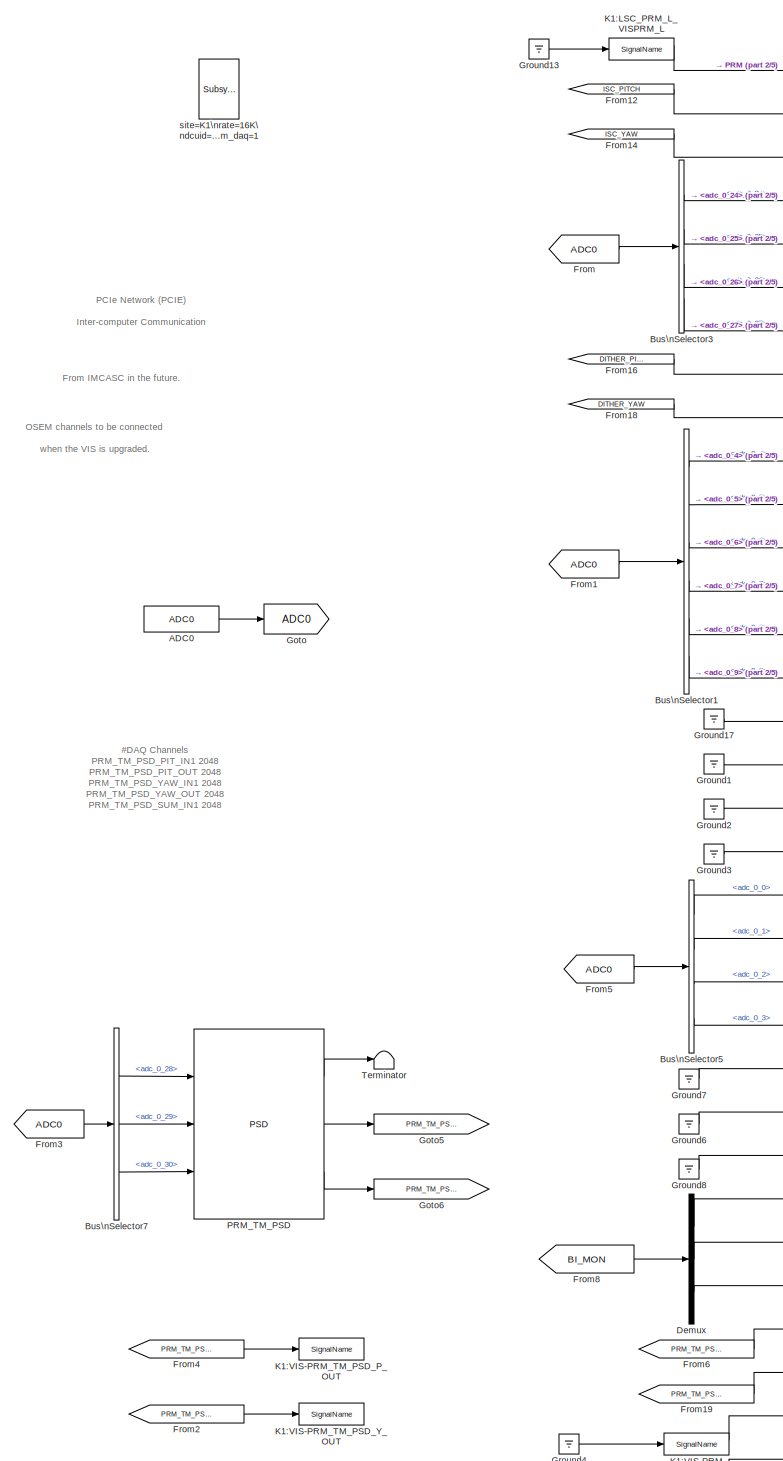
[diagram: root canvas - part 1/5, left side, full height]
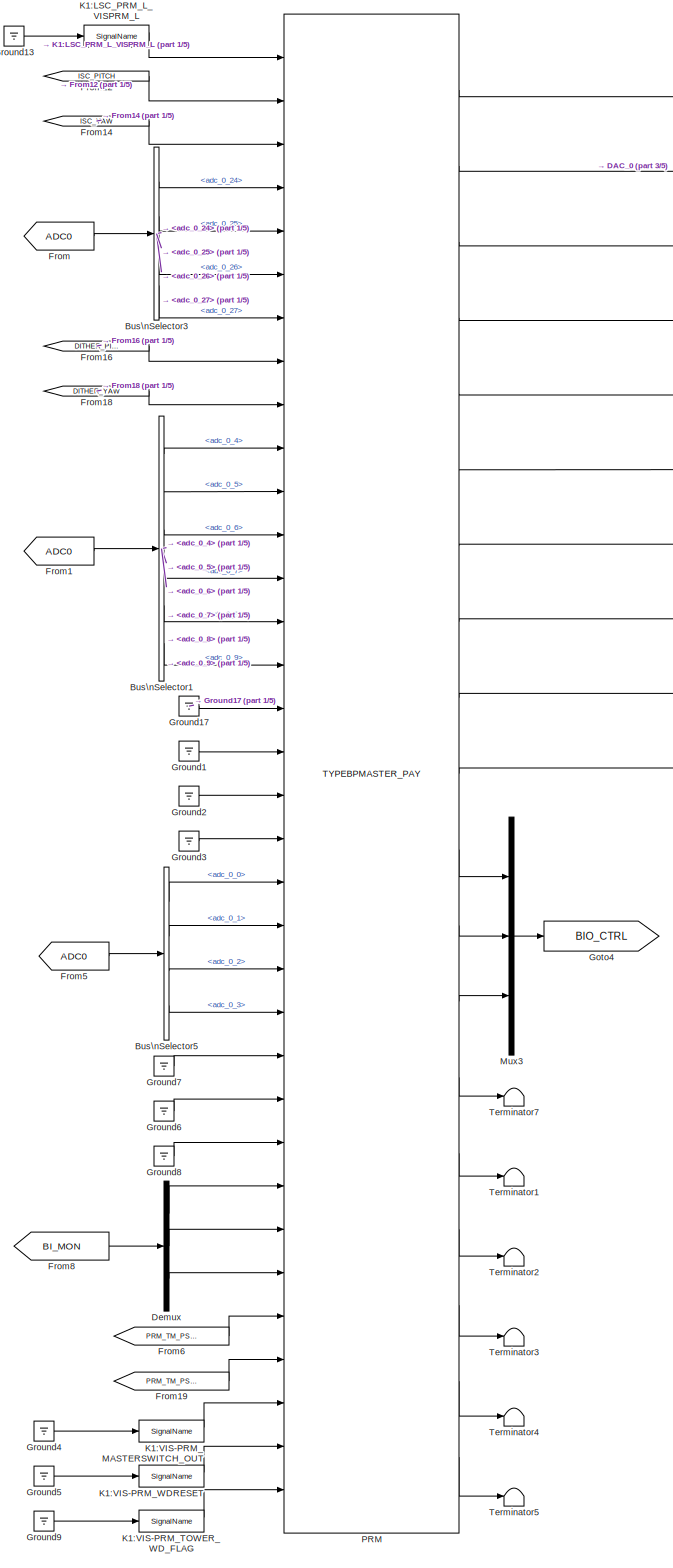
[diagram: root canvas - part 2/5, left side, full height]
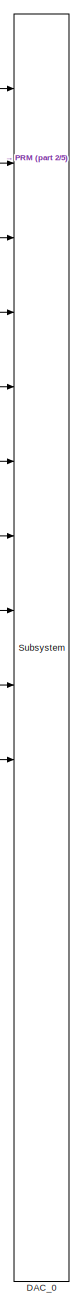
[diagram: root canvas - part 3/5, center side, full height]
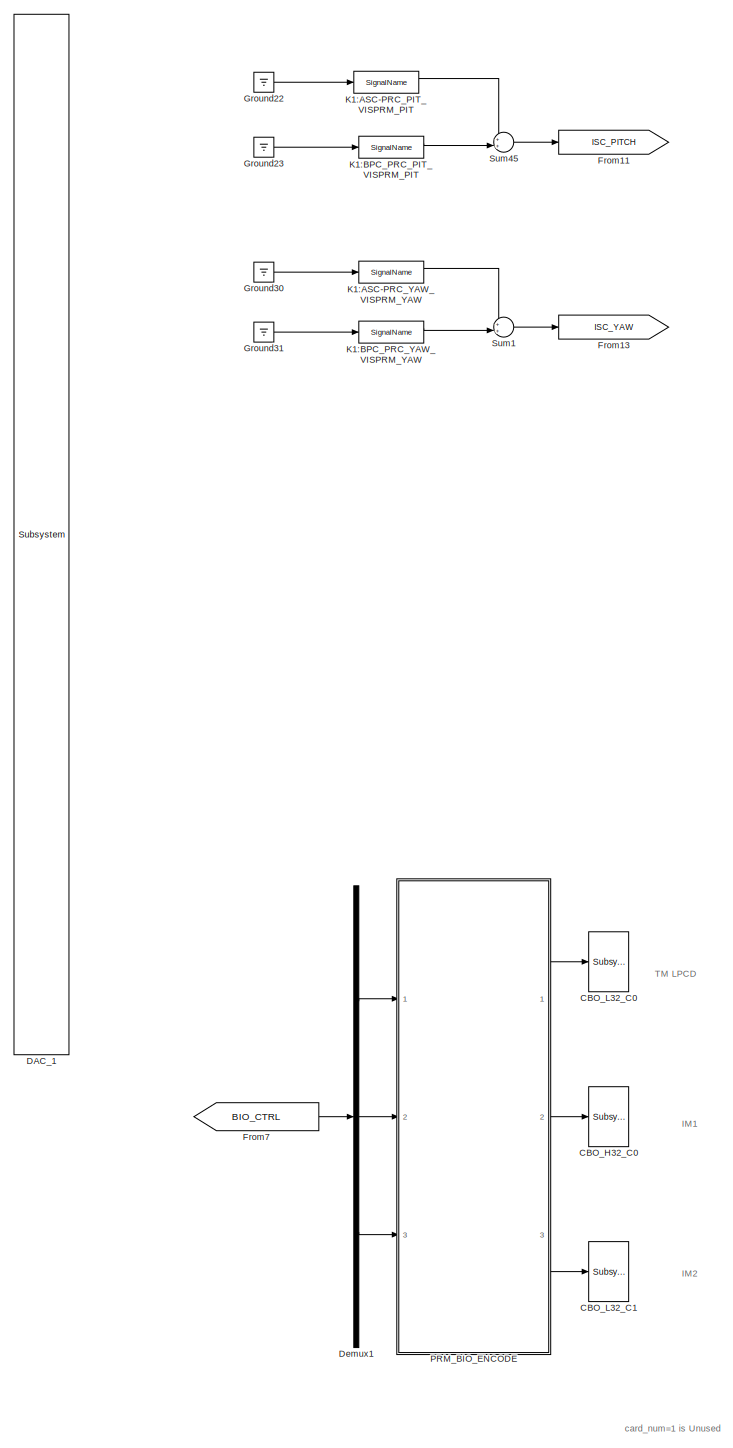
[diagram: root canvas - part 4/5, right side, full height]
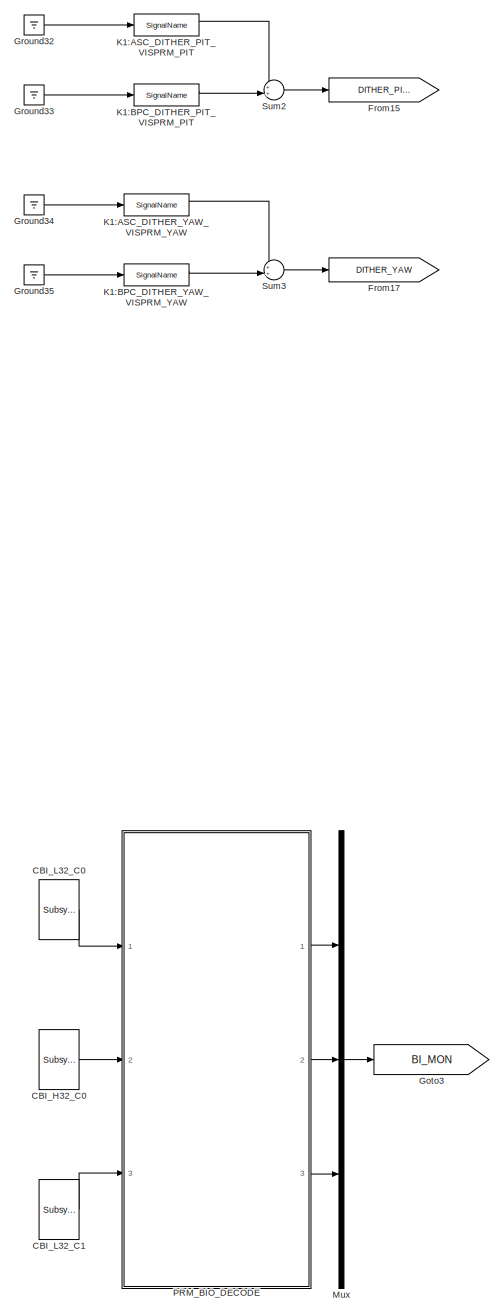
[diagram: root canvas - part 5/5, right side, full height]
MODEL k1visprmp
KIND model
BLOCK [Reference] ADC0  REF=cdsAdcx0/ADC0
  AttributesFormatString = %<Description>\\n%<Tag>
  Description = type-GSC_16AI64SSA\ncard_num=0
  Ports = [0, 1]
  SID = 1559
  SourceBlock = cdsAdcx0/ADC0
  SourceType = SubSystem
  Tag = cdsAdc
BLOCK [BusSelector] Bus\nSelector1
  AttributesFormatString = %<Description>
  Description = ADC Selector
  OutputSignals = adc_0_4,adc_0_5,adc_0_6,adc_0_7,adc_0_8,adc_0_9
  Ports = [1, 6]
  SID = 1485
BLOCK [BusSelector] Bus\nSelector3
  AttributesFormatString = %<Description>
  Description = ADC Selector
  OutputSignals = adc_0_24,adc_0_25,adc_0_26,adc_0_27
  Ports = [1, 4]
  SID = 1487
BLOCK [BusSelector] Bus\nSelector5
  AttributesFormatString = %<Description>
  Description = ADC Selector
  OutputSignals = adc_0_0,adc_0_1,adc_0_2,adc_0_3
  Ports = [1, 4]
  SID = 1489
BLOCK [BusSelector] Bus\nSelector7
  AttributesFormatString = %<Description>
  Description = ADC Selector
  OutputSignals = adc_0_28,adc_0_29,adc_0_30
  Ports = [1, 3]
  SID = 1490
BLOCK [Reference] CBI_H32_C0  REF=cdsCDI64/Subsystem
  AttributesFormatString = %<Tag>\\n%<Description>
  Description = card_num=1
  Ports = [0, 1]
  SID = 1562
  SourceBlock = cdsCDI64/Subsystem
  SourceType = SubSystem
  Tag = cdsCDI64
BLOCK [Reference] CBI_L32_C0  REF=cdsCDI64/Subsystem
  AttributesFormatString = %<Tag>\\n%<Description>
  Description = card_num=0
  Ports = [0, 1]
  SID = 1565
  SourceBlock = cdsCDI64/Subsystem
  SourceType = SubSystem
  Tag = cdsCDI64
BLOCK [Reference] CBI_L32_C1  REF=cdsCDI64/Subsystem
  AttributesFormatString = %<Tag>\\n%<Description>
  Description = card_num=2
  Ports = [0, 1]
  SID = 1566
  SourceBlock = cdsCDI64/Subsystem
  SourceType = SubSystem
  Tag = cdsCDI64
BLOCK [Reference] CBO_H32_C0  REF=cdsCDO64/Subsystem
  AttributesFormatString = %<Tag>\\n%<Description>
  Description = card_num=1
  Ports = [1]
  SID = 1568
  SourceBlock = cdsCDO64/Subsystem
  SourceType = SubSystem
  Tag = cdsCDO64
BLOCK [Reference] CBO_L32_C0  REF=cdsCDO64/Subsystem
  AttributesFormatString = %<Tag>\\n%<Description>
  Description = card_num=0
  Ports = [1]
  SID = 1571
  SourceBlock = cdsCDO64/Subsystem
  SourceType = SubSystem
  Tag = cdsCDO64
BLOCK [Reference] CBO_L32_C1  REF=cdsCDO64/Subsystem
  AttributesFormatString = %<Tag>\\n%<Description>
  Description = card_num=2
  Ports = [1]
  SID = 1572
  SourceBlock = cdsCDO64/Subsystem
  SourceType = SubSystem
  Tag = cdsCDO64
BLOCK [Reference] DAC_0  REF=dac/Subsystem  (lib defined in slx_40ef132df75b, slx_b7657ccccc5b, +4 more)
  AttributesFormatString = %<Description>
  Description = type=GSC_16AO16,\ncard_num=0
  Ports = [16]
  SID = 1560
  SourceBlock = dac/Subsystem
  SourceType = SubSystem
BLOCK [Reference] DAC_1  REF=dac/Subsystem  (lib defined in slx_40ef132df75b, slx_b7657ccccc5b, +4 more)
  AttributesFormatString = %<Description>
  Description = type=GSC_16AO16,\ncard_num=1
  Ports = [16]
  SID = 1561
  SourceBlock = dac/Subsystem
  SourceType = SubSystem
BLOCK [Demux] Demux
  DisplayOption = bar
  Outputs = 3
  Ports = [1, 3]
  SID = 1491
BLOCK [Demux] Demux1
  DisplayOption = bar
  Outputs = 3
  Ports = [1, 3]
  SID = 1121
BLOCK [From] From
  GotoTag = ADC0
  SID = 1529
BLOCK [From] From1
  GotoTag = ADC0
  SID = 1530
BLOCK [Goto] From11
  GotoTag = ISC_PITCH
  SID = 1608
BLOCK [From] From12
  GotoTag = ISC_PITCH
  SID = 1636
BLOCK [Goto] From13
  GotoTag = ISC_YAW
  SID = 1609
BLOCK [From] From14
  GotoTag = ISC_YAW
  SID = 1637
BLOCK [Goto] From15
  GotoTag = DITHER_PITCH
  SID = 1610
BLOCK [From] From16
  GotoTag = DITHER_PITCH
  SID = 1638
BLOCK [Goto] From17
  GotoTag = DITHER_YAW
  SID = 1611
BLOCK [From] From18
  GotoTag = DITHER_YAW
  SID = 1639
BLOCK [From] From19
  GotoTag = PRM_TM_PSD_Y
  SID = 1643
BLOCK [From] From2
  GotoTag = PRM_TM_PSD_Y
  SID = 1661
BLOCK [From] From3
  GotoTag = ADC0
  SID = 1532
BLOCK [From] From4
  GotoTag = PRM_TM_PSD_P
  SID = 1662
BLOCK [From] From5
  GotoTag = ADC0
  SID = 1534
BLOCK [From] From6
  GotoTag = PRM_TM_PSD_P
  SID = 1642
BLOCK [From] From7
  GotoTag = BIO_CTRL
  SID = 1122
BLOCK [From] From8
  GotoTag = BI_MON
  SID = 1498
BLOCK [Goto] Goto
  GotoTag = ADC0
  SID = 1499
BLOCK [Goto] Goto3
  GotoTag = BI_MON
  SID = 1123
BLOCK [Goto] Goto4
  GotoTag = BIO_CTRL
  SID = 774
BLOCK [Goto] Goto5
  GotoTag = PRM_TM_PSD_P
  SID = 1640
BLOCK [Goto] Goto6
  GotoTag = PRM_TM_PSD_Y
  SID = 1641
BLOCK [Ground] Ground1
  SID = 1644
BLOCK [Ground] Ground13
  SID = 1503
BLOCK [Ground] Ground17
  SID = 1578
BLOCK [Ground] Ground2
  SID = 1645
BLOCK [Ground] Ground22
  SID = 1612
BLOCK [Ground] Ground23
  SID = 1613
BLOCK [Ground] Ground3
  SID = 1646
BLOCK [Ground] Ground30
  SID = 1614
BLOCK [Ground] Ground31
  SID = 1615
BLOCK [Ground] Ground32
  SID = 1616
BLOCK [Ground] Ground33
  SID = 1617
BLOCK [Ground] Ground34
  SID = 1618
BLOCK [Ground] Ground35
  SID = 1619
BLOCK [Ground] Ground4
  SID = 1648
BLOCK [Ground] Ground5
  SID = 1650
BLOCK [Ground] Ground6
  SID = 1507
BLOCK [Ground] Ground7
  SID = 1508
BLOCK [Ground] Ground8
  SID = 1509
BLOCK [Ground] Ground9
  SID = 1652
BLOCK [Reference] K1:ASC-PRC_PIT_VISPRM_PIT  REF=cdsIPCx/SignalName
  AttributesFormatString = %<Tag>
  Description = Inter-Process Communication via PCI Express network.
  Ports = [1, 2]
  SID = 1632
  SourceBlock = cdsIPCx/SignalName
  SourceType = SubSystem
  Tag = cdsIPCx_PCIE
BLOCK [Reference] K1:ASC-PRC_YAW_VISPRM_YAW  REF=cdsIPCx/SignalName
  AttributesFormatString = %<Tag>
  Description = Inter-Process Communication via PCI Express network.
  Ports = [1, 2]
  SID = 1633
  SourceBlock = cdsIPCx/SignalName
  SourceType = SubSystem
  Tag = cdsIPCx_PCIE
BLOCK [Reference] K1:ASC_DITHER_PIT_VISPRM_PIT  REF=cdsIPCx/SignalName
  AttributesFormatString = %<Tag>
  Description = Inter-Process Communication via PCI Express network.
  Ports = [1, 2]
  SID = 1634
  SourceBlock = cdsIPCx/SignalName
  SourceType = SubSystem
  Tag = cdsIPCx_PCIE
BLOCK [Reference] K1:ASC_DITHER_YAW_VISPRM_YAW  REF=cdsIPCx/SignalName
  AttributesFormatString = %<Tag>
  Description = Inter-Process Communication via PCI Express network.
  Ports = [1, 2]
  SID = 1635
  SourceBlock = cdsIPCx/SignalName
  SourceType = SubSystem
  Tag = cdsIPCx_PCIE
BLOCK [Reference] K1:BPC_DITHER_PIT_VISPRM_PIT  REF=cdsIPCx/SignalName
  AttributesFormatString = %<Tag>
  Description = Inter-Process Communication via PCI Express network.
  Ports = [1, 2]
  SID = 1624
  SourceBlock = cdsIPCx/SignalName
  SourceType = SubSystem
  Tag = cdsIPCx_PCIE
BLOCK [Reference] K1:BPC_DITHER_YAW_VISPRM_YAW  REF=cdsIPCx/SignalName
  AttributesFormatString = %<Tag>
  Description = Inter-Process Communication via PCI Express network.
  Ports = [1, 2]
  SID = 1625
  SourceBlock = cdsIPCx/SignalName
  SourceType = SubSystem
  Tag = cdsIPCx_PCIE
BLOCK [Reference] K1:BPC_PRC_PIT_VISPRM_PIT  REF=cdsIPCx/SignalName
  AttributesFormatString = %<Tag>
  Description = Inter-Process Communication via PCI Express network.
  Ports = [1, 2]
  SID = 1626
  SourceBlock = cdsIPCx/SignalName
  SourceType = SubSystem
  Tag = cdsIPCx_PCIE
BLOCK [Reference] K1:BPC_PRC_YAW_VISPRM_YAW  REF=cdsIPCx/SignalName
  AttributesFormatString = %<Tag>
  Description = Inter-Process Communication via PCI Express network.
  Ports = [1, 2]
  SID = 1627
  SourceBlock = cdsIPCx/SignalName
  SourceType = SubSystem
  Tag = cdsIPCx_PCIE
BLOCK [Reference] K1:LSC_PRM_L_VISPRM_L  REF=cdsIPCx/SignalName
  AttributesFormatString = %<Tag>
  Description = Inter-Process Communication via PCI Express network.
  Ports = [1, 2]
  SID = 1588
  SourceBlock = cdsIPCx/SignalName
  SourceType = SubSystem
  Tag = cdsIPCx_PCIE
BLOCK [Reference] K1:VIS-PRM_MASTERSWITCH_OUT  REF=cdsIPCx/SignalName
  AttributesFormatString = %<Tag>
  Description = Inter-Process Communication via Shared memory.
  Ports = [1, 2]
  SID = 1647
  SourceBlock = cdsIPCx/SignalName
  SourceType = SubSystem
  Tag = cdsIPCx_SHMEM
BLOCK [Reference] K1:VIS-PRM_TM_PSD_P_OUT  REF=cdsIPCx/SignalName
  AttributesFormatString = %<Tag>
  Description = Inter-Process Communication via Shared memory.
  Ports = [1, 2]
  SID = 1659
  SourceBlock = cdsIPCx/SignalName
  SourceType = SubSystem
  Tag = cdsIPCx_SHMEM
BLOCK [Reference] K1:VIS-PRM_TM_PSD_Y_OUT  REF=cdsIPCx/SignalName
  AttributesFormatString = %<Tag>
  Description = Inter-Process Communication via Shared memory.
  Ports = [1, 2]
  SID = 1660
  SourceBlock = cdsIPCx/SignalName
  SourceType = SubSystem
  Tag = cdsIPCx_SHMEM
BLOCK [Reference] K1:VIS-PRM_TOWER_WD_FLAG  REF=cdsIPCx/SignalName
  AttributesFormatString = %<Tag>
  Description = Inter-Process Communication via Shared memory.
  Ports = [1, 2]
  SID = 1651
  SourceBlock = cdsIPCx/SignalName
  SourceType = SubSystem
  Tag = cdsIPCx_SHMEM
BLOCK [Reference] K1:VIS-PRM_WDRESET  REF=cdsIPCx/SignalName
  AttributesFormatString = %<Tag>
  Description = Inter-Process Communication via Shared memory.
  Ports = [1, 2]
  SID = 1649
  SourceBlock = cdsIPCx/SignalName
  SourceType = SubSystem
  Tag = cdsIPCx_SHMEM
BLOCK [Mux] Mux
  DisplayOption = bar
  Inputs = 3
  Ports = [3, 1]
  SID = 1125
BLOCK [Mux] Mux3
  DisplayOption = bar
  Inputs = 3
  Ports = [3, 1]
  SID = 804
BLOCK [Reference] PRM  REF=TYPEBP_MASTER/TYPEBPMASTER_PAY
  AttributesFormatString = %<Description>
  Description = TYPEBP MASTER
  Ports = [34, 19]
  SID = 1665
  SourceBlock = TYPEBP_MASTER/TYPEBPMASTER_PAY
  SourceType = SubSystem
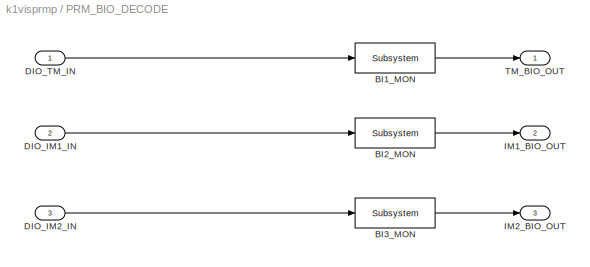
BLOCK [SubSystem] PRM_BIO_DECODE
  Ports = [3, 3]
  RequestExecContextInheritance = off
  SID = 1126
  Variant = off
BLOCK [Reference] PRM_BIO_DECODE/BI1_MON  REF=cdsEpicsOut/Subsystem
  AttributesFormatString = %<Tag>
  Description = Purpose:                                          \nOutput a FE signal to an EPICS channel.           \n                                                  \nOperation:                                        \nTakes input value and passes it to EPICS record.  \n                                                  \nUsage:                                            \nName the part with the desired EPICS...<+14ch>  <repeated x6 — deduplicated; at blocks: BI1_MON, BI2_MON, BI3_MON, DIO_0_OUT, DIO_1_OUT, DIO_2_OUT>
  Ports = [1, 1]
  SID = 1133
  SourceBlock = cdsEpicsOut/Subsystem
  SourceType = SubSystem
  Tag = cdsEpicsOutput
BLOCK [Reference] PRM_BIO_DECODE/BI2_MON  REF=cdsEpicsOut/Subsystem
  AttributesFormatString = %<Tag>
  Ports = [1, 1]
  SID = 1134
  SourceBlock = cdsEpicsOut/Subsystem
  SourceType = SubSystem
  Tag = cdsEpicsOutput
BLOCK [Reference] PRM_BIO_DECODE/BI3_MON  REF=cdsEpicsOut/Subsystem
  AttributesFormatString = %<Tag>
  Ports = [1, 1]
  SID = 1135
  SourceBlock = cdsEpicsOut/Subsystem
  SourceType = SubSystem
  Tag = cdsEpicsOutput
BLOCK [Inport] PRM_BIO_DECODE/DIO_IM1_IN
  IconDisplay = Port number
  Port = 2
  SID = 1128
BLOCK [Inport] PRM_BIO_DECODE/DIO_IM2_IN
  IconDisplay = Port number
  Port = 3
  SID = 1129
BLOCK [Inport] PRM_BIO_DECODE/DIO_TM_IN
  IconDisplay = Port number
  SID = 1127
BLOCK [Outport] PRM_BIO_DECODE/IM1_BIO_OUT
  IconDisplay = Port number
  Port = 2
  SID = 1140
BLOCK [Outport] PRM_BIO_DECODE/IM2_BIO_OUT
  IconDisplay = Port number
  Port = 3
  SID = 1141
BLOCK [Outport] PRM_BIO_DECODE/TM_BIO_OUT
  IconDisplay = Port number
  SID = 1139
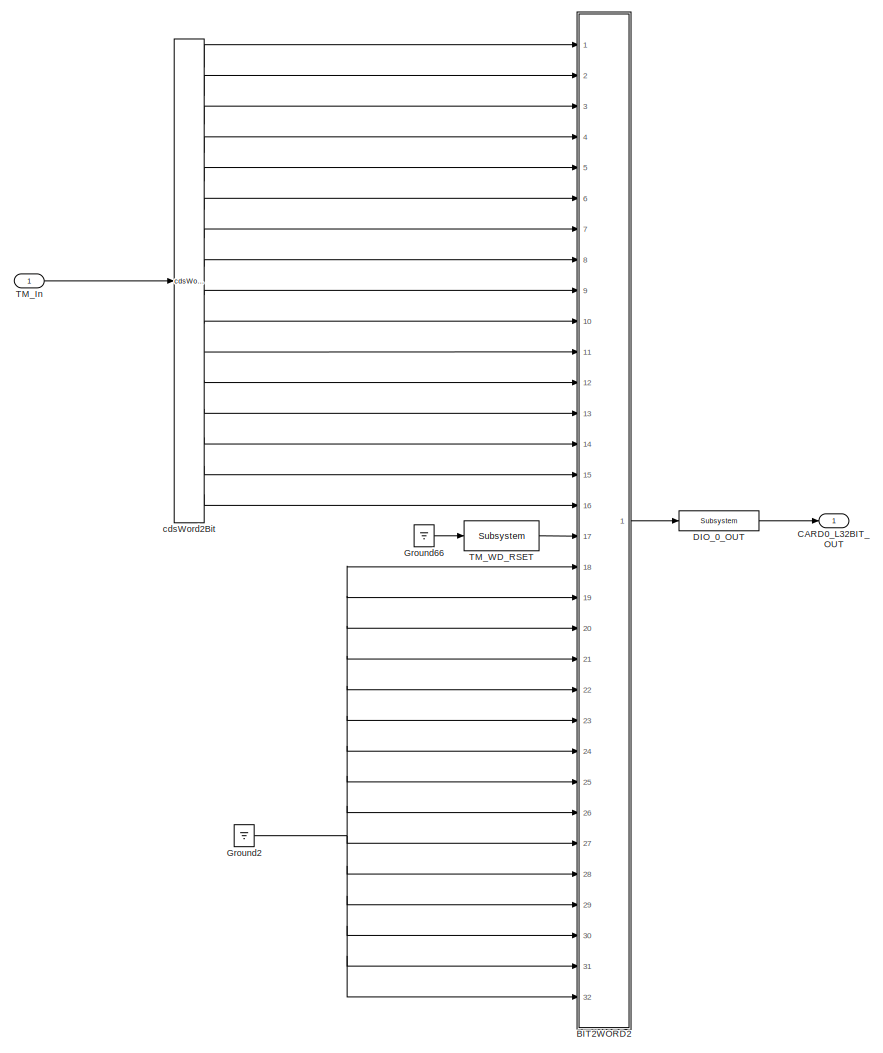
[diagram: PRM_BIO_ENCODE - part 1/3, top left region]
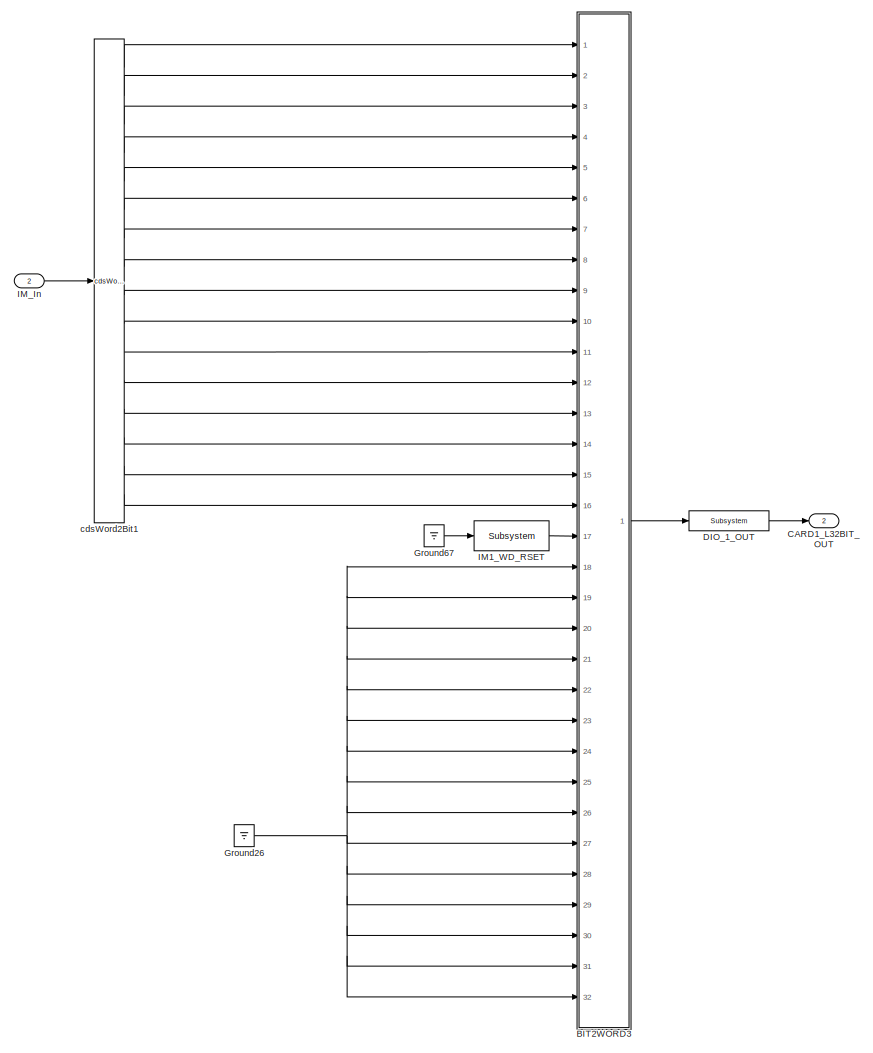
[diagram: PRM_BIO_ENCODE - part 2/3, top right region]
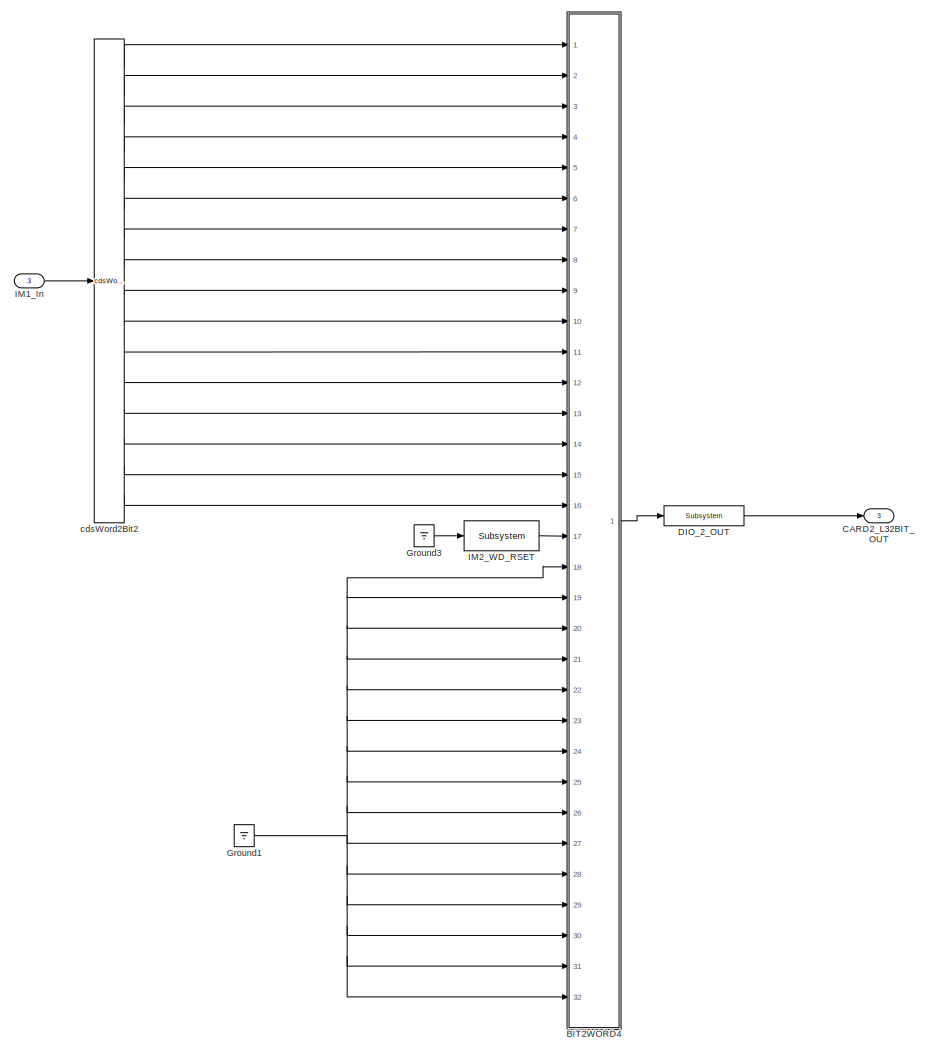
[diagram: PRM_BIO_ENCODE - part 3/3, bottom left region]
BLOCK [SubSystem] PRM_BIO_ENCODE
  Ports = [3, 3]
  RequestExecContextInheritance = off
  SID = 1145
  Variant = off
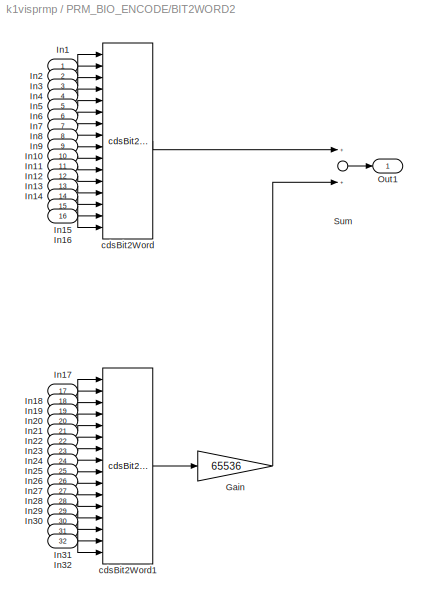
BLOCK [SubSystem] PRM_BIO_ENCODE/BIT2WORD2
  Ports = [32, 1]
  RequestExecContextInheritance = off
  SID = 1192
  Variant = off
BLOCK [Gain] PRM_BIO_ENCODE/BIT2WORD2/Gain
  Gain = 65536
  OutDataTypeStr = Inherit: Inherit via internal rule
  ParamDataTypeStr = Inherit: Inherit via internal rule
  SID = 1225
  SaturateOnIntegerOverflow = off
BLOCK [Inport] PRM_BIO_ENCODE/BIT2WORD2/In1
  IconDisplay = Port number
  SID = 1193
BLOCK [Inport] PRM_BIO_ENCODE/BIT2WORD2/In10
  IconDisplay = Port number
  Port = 10
  SID = 1202
BLOCK [Inport] PRM_BIO_ENCODE/BIT2WORD2/In11
  IconDisplay = Port number
  Port = 11
  SID = 1203
BLOCK [Inport] PRM_BIO_ENCODE/BIT2WORD2/In12
  IconDisplay = Port number
  Port = 12
  SID = 1204
BLOCK [Inport] PRM_BIO_ENCODE/BIT2WORD2/In13
  IconDisplay = Port number
  Port = 13
  SID = 1205
BLOCK [Inport] PRM_BIO_ENCODE/BIT2WORD2/In14
  IconDisplay = Port number
  Port = 14
  SID = 1206
BLOCK [Inport] PRM_BIO_ENCODE/BIT2WORD2/In15
  IconDisplay = Port number
  Port = 15
  SID = 1207
BLOCK [Inport] PRM_BIO_ENCODE/BIT2WORD2/In16
  IconDisplay = Port number
  Port = 16
  SID = 1208
BLOCK [Inport] PRM_BIO_ENCODE/BIT2WORD2/In17
  IconDisplay = Port number
  Port = 17
  SID = 1209
BLOCK [Inport] PRM_BIO_ENCODE/BIT2WORD2/In18
  IconDisplay = Port number
  Port = 18
  SID = 1210
BLOCK [Inport] PRM_BIO_ENCODE/BIT2WORD2/In19
  IconDisplay = Port number
  Port = 19
  SID = 1211
BLOCK [Inport] PRM_BIO_ENCODE/BIT2WORD2/In2
  IconDisplay = Port number
  Port = 2
  SID = 1194
BLOCK [Inport] PRM_BIO_ENCODE/BIT2WORD2/In20
  IconDisplay = Port number
  Port = 20
  SID = 1212
BLOCK [Inport] PRM_BIO_ENCODE/BIT2WORD2/In21
  IconDisplay = Port number
  Port = 21
  SID = 1213
BLOCK [Inport] PRM_BIO_ENCODE/BIT2WORD2/In22
  IconDisplay = Port number
  Port = 22
  SID = 1214
BLOCK [Inport] PRM_BIO_ENCODE/BIT2WORD2/In23
  IconDisplay = Port number
  Port = 23
  SID = 1215
BLOCK [Inport] PRM_BIO_ENCODE/BIT2WORD2/In24
  IconDisplay = Port number
  Port = 24
  SID = 1216
BLOCK [Inport] PRM_BIO_ENCODE/BIT2WORD2/In25
  IconDisplay = Port number
  Port = 25
  SID = 1217
BLOCK [Inport] PRM_BIO_ENCODE/BIT2WORD2/In26
  IconDisplay = Port number
  Port = 26
  SID = 1218
BLOCK [Inport] PRM_BIO_ENCODE/BIT2WORD2/In27
  IconDisplay = Port number
  Port = 27
  SID = 1219
BLOCK [Inport] PRM_BIO_ENCODE/BIT2WORD2/In28
  IconDisplay = Port number
  Port = 28
  SID = 1220
BLOCK [Inport] PRM_BIO_ENCODE/BIT2WORD2/In29
  IconDisplay = Port number
  Port = 29
  SID = 1221
BLOCK [Inport] PRM_BIO_ENCODE/BIT2WORD2/In3
  IconDisplay = Port number
  Port = 3
  SID = 1195
BLOCK [Inport] PRM_BIO_ENCODE/BIT2WORD2/In30
  IconDisplay = Port number
  Port = 30
  SID = 1222
BLOCK [Inport] PRM_BIO_ENCODE/BIT2WORD2/In31
  IconDisplay = Port number
  Port = 31
  SID = 1223
BLOCK [Inport] PRM_BIO_ENCODE/BIT2WORD2/In32
  IconDisplay = Port number
  Port = 32
  SID = 1224
BLOCK [Inport] PRM_BIO_ENCODE/BIT2WORD2/In4
  IconDisplay = Port number
  Port = 4
  SID = 1196
BLOCK [Inport] PRM_BIO_ENCODE/BIT2WORD2/In5
  IconDisplay = Port number
  Port = 5
  SID = 1197
BLOCK [Inport] PRM_BIO_ENCODE/BIT2WORD2/In6
  IconDisplay = Port number
  Port = 6
  SID = 1198
BLOCK [Inport] PRM_BIO_ENCODE/BIT2WORD2/In7
  IconDisplay = Port number
  Port = 7
  SID = 1199
BLOCK [Inport] PRM_BIO_ENCODE/BIT2WORD2/In8
  IconDisplay = Port number
  Port = 8
  SID = 1200
BLOCK [Inport] PRM_BIO_ENCODE/BIT2WORD2/In9
  IconDisplay = Port number
  Port = 9
  SID = 1201
BLOCK [Outport] PRM_BIO_ENCODE/BIT2WORD2/Out1
  IconDisplay = Port number
  SID = 1229
BLOCK [Sum] PRM_BIO_ENCODE/BIT2WORD2/Sum
  InputSameDT = off
  OutDataTypeStr = Inherit: Inherit via internal rule
  Ports = [2, 1]
  SID = 1226
  SaturateOnIntegerOverflow = off
BLOCK [Reference] PRM_BIO_ENCODE/BIT2WORD2/cdsBit2Word  REF=cdsBit2Word/cdsBit2Word
  AttributesFormatString = %<Tag>
  Description = Forms single 16 bit integer from 16 0/1 inputs.
  Ports = [16, 1]
  SID = 1227
  SourceBlock = cdsBit2Word/cdsBit2Word
  SourceType = SubSystem
  Tag = cdsBit2Word
BLOCK [Reference] PRM_BIO_ENCODE/BIT2WORD2/cdsBit2Word1  REF=cdsBit2Word/cdsBit2Word
  AttributesFormatString = %<Tag>
  Description = Forms single 16 bit integer from 16 0/1 inputs.
  Ports = [16, 1]
  SID = 1228
  SourceBlock = cdsBit2Word/cdsBit2Word
  SourceType = SubSystem
  Tag = cdsBit2Word
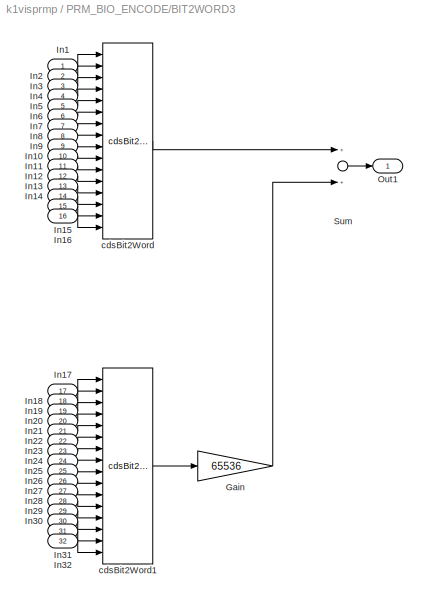
BLOCK [SubSystem] PRM_BIO_ENCODE/BIT2WORD3
  Ports = [32, 1]
  RequestExecContextInheritance = off
  SID = 1230
  Variant = off
BLOCK [Gain] PRM_BIO_ENCODE/BIT2WORD3/Gain
  Gain = 65536
  OutDataTypeStr = Inherit: Inherit via internal rule
  ParamDataTypeStr = Inherit: Inherit via internal rule
  SID = 1263
  SaturateOnIntegerOverflow = off
BLOCK [Inport] PRM_BIO_ENCODE/BIT2WORD3/In1
  IconDisplay = Port number
  SID = 1231
BLOCK [Inport] PRM_BIO_ENCODE/BIT2WORD3/In10
  IconDisplay = Port number
  Port = 10
  SID = 1240
BLOCK [Inport] PRM_BIO_ENCODE/BIT2WORD3/In11
  IconDisplay = Port number
  Port = 11
  SID = 1241
BLOCK [Inport] PRM_BIO_ENCODE/BIT2WORD3/In12
  IconDisplay = Port number
  Port = 12
  SID = 1242
BLOCK [Inport] PRM_BIO_ENCODE/BIT2WORD3/In13
  IconDisplay = Port number
  Port = 13
  SID = 1243
BLOCK [Inport] PRM_BIO_ENCODE/BIT2WORD3/In14
  IconDisplay = Port number
  Port = 14
  SID = 1244
BLOCK [Inport] PRM_BIO_ENCODE/BIT2WORD3/In15
  IconDisplay = Port number
  Port = 15
  SID = 1245
BLOCK [Inport] PRM_BIO_ENCODE/BIT2WORD3/In16
  IconDisplay = Port number
  Port = 16
  SID = 1246
BLOCK [Inport] PRM_BIO_ENCODE/BIT2WORD3/In17
  IconDisplay = Port number
  Port = 17
  SID = 1247
BLOCK [Inport] PRM_BIO_ENCODE/BIT2WORD3/In18
  IconDisplay = Port number
  Port = 18
  SID = 1248
BLOCK [Inport] PRM_BIO_ENCODE/BIT2WORD3/In19
  IconDisplay = Port number
  Port = 19
  SID = 1249
BLOCK [Inport] PRM_BIO_ENCODE/BIT2WORD3/In2
  IconDisplay = Port number
  Port = 2
  SID = 1232
BLOCK [Inport] PRM_BIO_ENCODE/BIT2WORD3/In20
  IconDisplay = Port number
  Port = 20
  SID = 1250
BLOCK [Inport] PRM_BIO_ENCODE/BIT2WORD3/In21
  IconDisplay = Port number
  Port = 21
  SID = 1251
BLOCK [Inport] PRM_BIO_ENCODE/BIT2WORD3/In22
  IconDisplay = Port number
  Port = 22
  SID = 1252
BLOCK [Inport] PRM_BIO_ENCODE/BIT2WORD3/In23
  IconDisplay = Port number
  Port = 23
  SID = 1253
BLOCK [Inport] PRM_BIO_ENCODE/BIT2WORD3/In24
  IconDisplay = Port number
  Port = 24
  SID = 1254
BLOCK [Inport] PRM_BIO_ENCODE/BIT2WORD3/In25
  IconDisplay = Port number
  Port = 25
  SID = 1255
BLOCK [Inport] PRM_BIO_ENCODE/BIT2WORD3/In26
  IconDisplay = Port number
  Port = 26
  SID = 1256
BLOCK [Inport] PRM_BIO_ENCODE/BIT2WORD3/In27
  IconDisplay = Port number
  Port = 27
  SID = 1257
BLOCK [Inport] PRM_BIO_ENCODE/BIT2WORD3/In28
  IconDisplay = Port number
  Port = 28
  SID = 1258
BLOCK [Inport] PRM_BIO_ENCODE/BIT2WORD3/In29
  IconDisplay = Port number
  Port = 29
  SID = 1259
BLOCK [Inport] PRM_BIO_ENCODE/BIT2WORD3/In3
  IconDisplay = Port number
  Port = 3
  SID = 1233
BLOCK [Inport] PRM_BIO_ENCODE/BIT2WORD3/In30
  IconDisplay = Port number
  Port = 30
  SID = 1260
BLOCK [Inport] PRM_BIO_ENCODE/BIT2WORD3/In31
  IconDisplay = Port number
  Port = 31
  SID = 1261
BLOCK [Inport] PRM_BIO_ENCODE/BIT2WORD3/In32
  IconDisplay = Port number
  Port = 32
  SID = 1262
BLOCK [Inport] PRM_BIO_ENCODE/BIT2WORD3/In4
  IconDisplay = Port number
  Port = 4
  SID = 1234
BLOCK [Inport] PRM_BIO_ENCODE/BIT2WORD3/In5
  IconDisplay = Port number
  Port = 5
  SID = 1235
BLOCK [Inport] PRM_BIO_ENCODE/BIT2WORD3/In6
  IconDisplay = Port number
  Port = 6
  SID = 1236
BLOCK [Inport] PRM_BIO_ENCODE/BIT2WORD3/In7
  IconDisplay = Port number
  Port = 7
  SID = 1237
BLOCK [Inport] PRM_BIO_ENCODE/BIT2WORD3/In8
  IconDisplay = Port number
  Port = 8
  SID = 1238
BLOCK [Inport] PRM_BIO_ENCODE/BIT2WORD3/In9
  IconDisplay = Port number
  Port = 9
  SID = 1239
BLOCK [Outport] PRM_BIO_ENCODE/BIT2WORD3/Out1
  IconDisplay = Port number
  SID = 1267
BLOCK [Sum] PRM_BIO_ENCODE/BIT2WORD3/Sum
  InputSameDT = off
  OutDataTypeStr = Inherit: Inherit via internal rule
  Ports = [2, 1]
  SID = 1264
  SaturateOnIntegerOverflow = off
BLOCK [Reference] PRM_BIO_ENCODE/BIT2WORD3/cdsBit2Word  REF=cdsBit2Word/cdsBit2Word
  AttributesFormatString = %<Tag>
  Description = Forms single 16 bit integer from 16 0/1 inputs.
  Ports = [16, 1]
  SID = 1265
  SourceBlock = cdsBit2Word/cdsBit2Word
  SourceType = SubSystem
  Tag = cdsBit2Word
BLOCK [Reference] PRM_BIO_ENCODE/BIT2WORD3/cdsBit2Word1  REF=cdsBit2Word/cdsBit2Word
  AttributesFormatString = %<Tag>
  Description = Forms single 16 bit integer from 16 0/1 inputs.
  Ports = [16, 1]
  SID = 1266
  SourceBlock = cdsBit2Word/cdsBit2Word
  SourceType = SubSystem
  Tag = cdsBit2Word
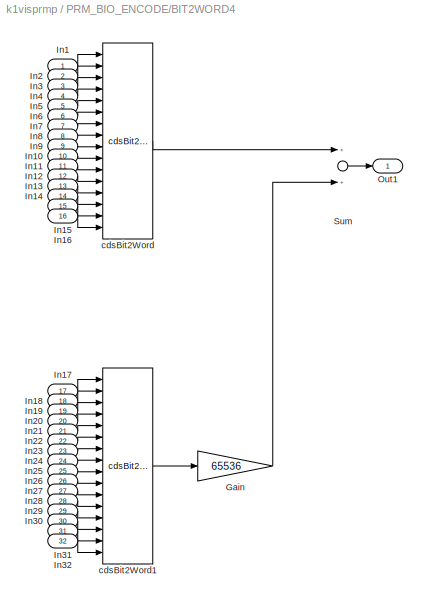
BLOCK [SubSystem] PRM_BIO_ENCODE/BIT2WORD4
  Ports = [32, 1]
  RequestExecContextInheritance = off
  SID = 1268
  Variant = off
BLOCK [Gain] PRM_BIO_ENCODE/BIT2WORD4/Gain
  Gain = 65536
  OutDataTypeStr = Inherit: Inherit via internal rule
  ParamDataTypeStr = Inherit: Inherit via internal rule
  SID = 1301
  SaturateOnIntegerOverflow = off
BLOCK [Inport] PRM_BIO_ENCODE/BIT2WORD4/In1
  IconDisplay = Port number
  SID = 1269
BLOCK [Inport] PRM_BIO_ENCODE/BIT2WORD4/In10
  IconDisplay = Port number
  Port = 10
  SID = 1278
BLOCK [Inport] PRM_BIO_ENCODE/BIT2WORD4/In11
  IconDisplay = Port number
  Port = 11
  SID = 1279
BLOCK [Inport] PRM_BIO_ENCODE/BIT2WORD4/In12
  IconDisplay = Port number
  Port = 12
  SID = 1280
BLOCK [Inport] PRM_BIO_ENCODE/BIT2WORD4/In13
  IconDisplay = Port number
  Port = 13
  SID = 1281
BLOCK [Inport] PRM_BIO_ENCODE/BIT2WORD4/In14
  IconDisplay = Port number
  Port = 14
  SID = 1282
BLOCK [Inport] PRM_BIO_ENCODE/BIT2WORD4/In15
  IconDisplay = Port number
  Port = 15
  SID = 1283
BLOCK [Inport] PRM_BIO_ENCODE/BIT2WORD4/In16
  IconDisplay = Port number
  Port = 16
  SID = 1284
BLOCK [Inport] PRM_BIO_ENCODE/BIT2WORD4/In17
  IconDisplay = Port number
  Port = 17
  SID = 1285
BLOCK [Inport] PRM_BIO_ENCODE/BIT2WORD4/In18
  IconDisplay = Port number
  Port = 18
  SID = 1286
BLOCK [Inport] PRM_BIO_ENCODE/BIT2WORD4/In19
  IconDisplay = Port number
  Port = 19
  SID = 1287
BLOCK [Inport] PRM_BIO_ENCODE/BIT2WORD4/In2
  IconDisplay = Port number
  Port = 2
  SID = 1270
BLOCK [Inport] PRM_BIO_ENCODE/BIT2WORD4/In20
  IconDisplay = Port number
  Port = 20
  SID = 1288
BLOCK [Inport] PRM_BIO_ENCODE/BIT2WORD4/In21
  IconDisplay = Port number
  Port = 21
  SID = 1289
BLOCK [Inport] PRM_BIO_ENCODE/BIT2WORD4/In22
  IconDisplay = Port number
  Port = 22
  SID = 1290
BLOCK [Inport] PRM_BIO_ENCODE/BIT2WORD4/In23
  IconDisplay = Port number
  Port = 23
  SID = 1291
BLOCK [Inport] PRM_BIO_ENCODE/BIT2WORD4/In24
  IconDisplay = Port number
  Port = 24
  SID = 1292
BLOCK [Inport] PRM_BIO_ENCODE/BIT2WORD4/In25
  IconDisplay = Port number
  Port = 25
  SID = 1293
BLOCK [Inport] PRM_BIO_ENCODE/BIT2WORD4/In26
  IconDisplay = Port number
  Port = 26
  SID = 1294
BLOCK [Inport] PRM_BIO_ENCODE/BIT2WORD4/In27
  IconDisplay = Port number
  Port = 27
  SID = 1295
BLOCK [Inport] PRM_BIO_ENCODE/BIT2WORD4/In28
  IconDisplay = Port number
  Port = 28
  SID = 1296
BLOCK [Inport] PRM_BIO_ENCODE/BIT2WORD4/In29
  IconDisplay = Port number
  Port = 29
  SID = 1297
BLOCK [Inport] PRM_BIO_ENCODE/BIT2WORD4/In3
  IconDisplay = Port number
  Port = 3
  SID = 1271
BLOCK [Inport] PRM_BIO_ENCODE/BIT2WORD4/In30
  IconDisplay = Port number
  Port = 30
  SID = 1298
BLOCK [Inport] PRM_BIO_ENCODE/BIT2WORD4/In31
  IconDisplay = Port number
  Port = 31
  SID = 1299
BLOCK [Inport] PRM_BIO_ENCODE/BIT2WORD4/In32
  IconDisplay = Port number
  Port = 32
  SID = 1300
BLOCK [Inport] PRM_BIO_ENCODE/BIT2WORD4/In4
  IconDisplay = Port number
  Port = 4
  SID = 1272
BLOCK [Inport] PRM_BIO_ENCODE/BIT2WORD4/In5
  IconDisplay = Port number
  Port = 5
  SID = 1273
BLOCK [Inport] PRM_BIO_ENCODE/BIT2WORD4/In6
  IconDisplay = Port number
  Port = 6
  SID = 1274
BLOCK [Inport] PRM_BIO_ENCODE/BIT2WORD4/In7
  IconDisplay = Port number
  Port = 7
  SID = 1275
BLOCK [Inport] PRM_BIO_ENCODE/BIT2WORD4/In8
  IconDisplay = Port number
  Port = 8
  SID = 1276
BLOCK [Inport] PRM_BIO_ENCODE/BIT2WORD4/In9
  IconDisplay = Port number
  Port = 9
  SID = 1277
BLOCK [Outport] PRM_BIO_ENCODE/BIT2WORD4/Out1
  IconDisplay = Port number
  SID = 1305
BLOCK [Sum] PRM_BIO_ENCODE/BIT2WORD4/Sum
  InputSameDT = off
  OutDataTypeStr = Inherit: Inherit via internal rule
  Ports = [2, 1]
  SID = 1302
  SaturateOnIntegerOverflow = off
BLOCK [Reference] PRM_BIO_ENCODE/BIT2WORD4/cdsBit2Word  REF=cdsBit2Word/cdsBit2Word
  AttributesFormatString = %<Tag>
  Description = Forms single 16 bit integer from 16 0/1 inputs.
  Ports = [16, 1]
  SID = 1303
  SourceBlock = cdsBit2Word/cdsBit2Word
  SourceType = SubSystem
  Tag = cdsBit2Word
BLOCK [Reference] PRM_BIO_ENCODE/BIT2WORD4/cdsBit2Word1  REF=cdsBit2Word/cdsBit2Word
  AttributesFormatString = %<Tag>
  Description = Forms single 16 bit integer from 16 0/1 inputs.
  Ports = [16, 1]
  SID = 1304
  SourceBlock = cdsBit2Word/cdsBit2Word
  SourceType = SubSystem
  Tag = cdsBit2Word
BLOCK [Outport] PRM_BIO_ENCODE/CARD0_L32BIT_OUT
  IconDisplay = Port number
  SID = 1410
BLOCK [Outport] PRM_BIO_ENCODE/CARD1_L32BIT_OUT
  IconDisplay = Port number
  Port = 2
  SID = 1411
BLOCK [Outport] PRM_BIO_ENCODE/CARD2_L32BIT_OUT
  IconDisplay = Port number
  Port = 3
  SID = 1412
BLOCK [Reference] PRM_BIO_ENCODE/DIO_0_OUT  REF=cdsEpicsOut/Subsystem
  AttributesFormatString = %<Tag>
  Ports = [1, 1]
  SID = 1382
  SourceBlock = cdsEpicsOut/Subsystem
  SourceType = SubSystem
  Tag = cdsEpicsOutput
BLOCK [Reference] PRM_BIO_ENCODE/DIO_1_OUT  REF=cdsEpicsOut/Subsystem
  AttributesFormatString = %<Tag>
  Ports = [1, 1]
  SID = 1383
  SourceBlock = cdsEpicsOut/Subsystem
  SourceType = SubSystem
  Tag = cdsEpicsOutput
BLOCK [Reference] PRM_BIO_ENCODE/DIO_2_OUT  REF=cdsEpicsOut/Subsystem
  AttributesFormatString = %<Tag>
  Ports = [1, 1]
  SID = 1384
  SourceBlock = cdsEpicsOut/Subsystem
  SourceType = SubSystem
  Tag = cdsEpicsOutput
BLOCK [Ground] PRM_BIO_ENCODE/Ground1
  SID = 1389
BLOCK [Ground] PRM_BIO_ENCODE/Ground2
  SID = 1390
BLOCK [Ground] PRM_BIO_ENCODE/Ground26
  SID = 1391
BLOCK [Ground] PRM_BIO_ENCODE/Ground3
  SID = 1392
BLOCK [Ground] PRM_BIO_ENCODE/Ground66
  SID = 1396
BLOCK [Ground] PRM_BIO_ENCODE/Ground67
  SID = 1397
BLOCK [Inport] PRM_BIO_ENCODE/IM1_In
  IconDisplay = Port number
  Port = 3
  SID = 1148
BLOCK [Reference] PRM_BIO_ENCODE/IM1_WD_RSET  REF=cdsEpicsBinIn/Subsystem
  AttributesFormatString = %<Tag>
  Description = Purpose:                                                                            \nCreate an EPICS binary (0 or 1) input channel to the FE realtime controls.          \n                                                                                    \nOperation:                                                                          \nOutputs value from an EPICS ai record. Value is binary i...<+252ch>  <repeated x3 — deduplicated; at blocks: IM1_WD_RSET, IM2_WD_RSET, TM_WD_RSET>
  Ports = [1, 1]
  SID = 1401
  SourceBlock = cdsEpicsBinIn/Subsystem
  SourceType = SubSystem
  Tag = cdsEpicsBinIn
BLOCK [Reference] PRM_BIO_ENCODE/IM2_WD_RSET  REF=cdsEpicsBinIn/Subsystem
  AttributesFormatString = %<Tag>
  Ports = [1, 1]
  SID = 1402
  SourceBlock = cdsEpicsBinIn/Subsystem
  SourceType = SubSystem
  Tag = cdsEpicsBinIn
BLOCK [Inport] PRM_BIO_ENCODE/IM_In
  IconDisplay = Port number
  Port = 2
  SID = 1147
BLOCK [Inport] PRM_BIO_ENCODE/TM_In
  IconDisplay = Port number
  SID = 1146
BLOCK [Reference] PRM_BIO_ENCODE/TM_WD_RSET  REF=cdsEpicsBinIn/Subsystem
  AttributesFormatString = %<Tag>
  Ports = [1, 1]
  SID = 1403
  SourceBlock = cdsEpicsBinIn/Subsystem
  SourceType = SubSystem
  Tag = cdsEpicsBinIn
BLOCK [Reference] PRM_BIO_ENCODE/cdsWord2Bit  REF=cdsWord2Bit/cdsWord2Bit
  AttributesFormatString = cdsWord2Bit
  Description = Generate 16 0/1 outputs from single 16-bit integer input
  Ports = [1, 16]
  SID = 1404
  SourceBlock = cdsWord2Bit/cdsWord2Bit
  SourceType = SubSystem
  Tag = cdsWord2Bit
BLOCK [Reference] PRM_BIO_ENCODE/cdsWord2Bit1  REF=cdsWord2Bit/cdsWord2Bit
  AttributesFormatString = cdsWord2Bit
  Description = Generate 16 0/1 outputs from single 16-bit integer input
  Ports = [1, 16]
  SID = 1405
  SourceBlock = cdsWord2Bit/cdsWord2Bit
  SourceType = SubSystem
  Tag = cdsWord2Bit
BLOCK [Reference] PRM_BIO_ENCODE/cdsWord2Bit2  REF=cdsWord2Bit/cdsWord2Bit
  AttributesFormatString = cdsWord2Bit
  Description = Generate 16 0/1 outputs from single 16-bit integer input
  Ports = [1, 16]
  SID = 1406
  SourceBlock = cdsWord2Bit/cdsWord2Bit
  SourceType = SubSystem
  Tag = cdsWord2Bit
BLOCK [Reference] PRM_TM_PSD  REF=QPD/PSD
  Ports = [3, 3]
  SID = 1577
  SourceBlock = QPD/PSD
  SourceType = SubSystem
BLOCK [Sum] Sum1
  IconShape = round
  InputSameDT = off
  Inputs = ++|
  OutDataTypeStr = Inherit: Inherit via internal rule
  Ports = [2, 1]
  SID = 1628
  SaturateOnIntegerOverflow = off
BLOCK [Sum] Sum2
  IconShape = round
  InputSameDT = off
  Inputs = ++|
  OutDataTypeStr = Inherit: Inherit via internal rule
  Ports = [2, 1]
  SID = 1629
  SaturateOnIntegerOverflow = off
BLOCK [Sum] Sum3
  IconShape = round
  InputSameDT = off
  Inputs = ++|
  OutDataTypeStr = Inherit: Inherit via internal rule
  Ports = [2, 1]
  SID = 1630
  SaturateOnIntegerOverflow = off
BLOCK [Sum] Sum45
  IconShape = round
  InputSameDT = off
  Inputs = ++|
  OutDataTypeStr = Inherit: Inherit via internal rule
  Ports = [2, 1]
  SID = 1631
  SaturateOnIntegerOverflow = off
BLOCK [Terminator] Terminator
  SID = 1579
BLOCK [Terminator] Terminator1
  SID = 1654
BLOCK [Terminator] Terminator2
  SID = 1655
BLOCK [Terminator] Terminator3
  SID = 1656
BLOCK [Terminator] Terminator4
  SID = 1657
BLOCK [Terminator] Terminator5
  SID = 1658
BLOCK [Terminator] Terminator7
  SID = 1653
BLOCK [Reference] site=K1\nrate=16K\ndcuid=56\nhost=k1prm\nspecific_cpu=3\nadcSlave=1\nshmem_daq=1  REF=cdsParameters/Subsystem
  AttributesFormatString = %<Tag>
  Description = Purpose:                                                                                                                                                                                                                                \nProvide system parameters to the FE code generator to properly configure the generated EPICS names, rep rate of the FE controller, and the Data Acquisition node ID fo...<+2934ch>
  Ports = []
  SID = 336
  SourceBlock = cdsParameters/Subsystem
  SourceType = SubSystem
  Tag = cdsParameters
ANNOTATION (root): #DAQ Channels\nPRM_TM_PSD_PIT_IN1 2048\nPRM_TM_PSD_PIT_OUT 2048\nPRM_TM_PSD_YAW_IN1 2048\nPRM_TM_PSD_YAW_OUT 2048\nPRM_TM_PSD_SUM_IN1 2048\nPRM_TM_PSD_SUM_OUT 2048\n
ANNOTATION (root): \n \n TM LPCD
ANNOTATION (root): \n \n card_num=1 is Unused
ANNOTATION (root): \n \n IM1
ANNOTATION (root): \n \n IM2
ANNOTATION (root): \n \n From IMCASC in the future.
ANNOTATION (root): \n \n OSEM channels to be connected \n when the VIS is upgraded.
ANNOTATION (root): \n \n PCIe Network (PCIE) \n Inter-computer Communication
LINE ADC0:1 -> Goto:1
LINE Bus\nSelector1:1 -> PRM:10
LINE Bus\nSelector1:2 -> PRM:11
LINE Bus\nSelector1:3 -> PRM:12
LINE Bus\nSelector1:4 -> PRM:13
LINE Bus\nSelector1:5 -> PRM:14
LINE Bus\nSelector1:6 -> PRM:15
LINE Bus\nSelector3:1 -> PRM:4
LINE Bus\nSelector3:2 -> PRM:5
LINE Bus\nSelector3:3 -> PRM:6
LINE Bus\nSelector3:4 -> PRM:7
LINE Bus\nSelector5:1 -> PRM:20
LINE Bus\nSelector5:2 -> PRM:21
LINE Bus\nSelector5:3 -> PRM:22
LINE Bus\nSelector5:4 -> PRM:23
LINE Bus\nSelector7:1 -> PRM_TM_PSD:1
LINE Bus\nSelector7:2 -> PRM_TM_PSD:2
LINE Bus\nSelector7:3 -> PRM_TM_PSD:3
LINE CBI_H32_C0:1 -> PRM_BIO_DECODE:2
LINE CBI_L32_C0:1 -> PRM_BIO_DECODE:1
LINE CBI_L32_C1:1 -> PRM_BIO_DECODE:3
LINE Demux1:1 -> PRM_BIO_ENCODE:1
LINE Demux1:2 -> PRM_BIO_ENCODE:2
LINE Demux1:3 -> PRM_BIO_ENCODE:3
LINE Demux:1 -> PRM:27
LINE Demux:2 -> PRM:28
LINE Demux:3 -> PRM:29
LINE From12:1 -> PRM:2
LINE From14:1 -> PRM:3
LINE From16:1 -> PRM:8
LINE From18:1 -> PRM:9
LINE From19:1 -> PRM:31
LINE From1:1 -> Bus\nSelector1:1
LINE From2:1 -> K1:VIS-PRM_TM_PSD_Y_OUT:1
LINE From3:1 -> Bus\nSelector7:1
LINE From4:1 -> K1:VIS-PRM_TM_PSD_P_OUT:1
LINE From5:1 -> Bus\nSelector5:1
LINE From6:1 -> PRM:30
LINE From7:1 -> Demux1:1
LINE From8:1 -> Demux:1
LINE From:1 -> Bus\nSelector3:1
LINE Ground13:1 -> K1:LSC_PRM_L_VISPRM_L:1
LINE Ground17:1 -> PRM:16
LINE Ground1:1 -> PRM:17
LINE Ground22:1 -> K1:ASC-PRC_PIT_VISPRM_PIT:1
LINE Ground23:1 -> K1:BPC_PRC_PIT_VISPRM_PIT:1
LINE Ground2:1 -> PRM:18
LINE Ground30:1 -> K1:ASC-PRC_YAW_VISPRM_YAW:1
LINE Ground31:1 -> K1:BPC_PRC_YAW_VISPRM_YAW:1
LINE Ground32:1 -> K1:ASC_DITHER_PIT_VISPRM_PIT:1
LINE Ground33:1 -> K1:BPC_DITHER_PIT_VISPRM_PIT:1
LINE Ground34:1 -> K1:ASC_DITHER_YAW_VISPRM_YAW:1
LINE Ground35:1 -> K1:BPC_DITHER_YAW_VISPRM_YAW:1
LINE Ground3:1 -> PRM:19
LINE Ground4:1 -> K1:VIS-PRM_MASTERSWITCH_OUT:1
LINE Ground5:1 -> K1:VIS-PRM_WDRESET:1
LINE Ground6:1 -> PRM:25
LINE Ground7:1 -> PRM:24
LINE Ground8:1 -> PRM:26
LINE Ground9:1 -> K1:VIS-PRM_TOWER_WD_FLAG:1
LINE K1:ASC-PRC_PIT_VISPRM_PIT:1 -> Sum45:1
LINE K1:ASC-PRC_YAW_VISPRM_YAW:1 -> Sum1:1
LINE K1:ASC_DITHER_PIT_VISPRM_PIT:1 -> Sum2:1
LINE K1:ASC_DITHER_YAW_VISPRM_YAW:1 -> Sum3:1
LINE K1:BPC_DITHER_PIT_VISPRM_PIT:1 -> Sum2:2
LINE K1:BPC_DITHER_YAW_VISPRM_YAW:1 -> Sum3:2
LINE K1:BPC_PRC_PIT_VISPRM_PIT:1 -> Sum45:2
LINE K1:BPC_PRC_YAW_VISPRM_YAW:1 -> Sum1:2
LINE K1:LSC_PRM_L_VISPRM_L:1 -> PRM:1
LINE K1:VIS-PRM_MASTERSWITCH_OUT:1 -> PRM:32
LINE K1:VIS-PRM_TOWER_WD_FLAG:1 -> PRM:34
LINE K1:VIS-PRM_WDRESET:1 -> PRM:33
LINE Mux3:1 -> Goto4:1
LINE Mux:1 -> Goto3:1
LINE PRM:1 -> DAC_0:1
LINE PRM:10 -> DAC_0:10
LINE PRM:11 -> Mux3:1
LINE PRM:12 -> Mux3:2
LINE PRM:13 -> Mux3:3
LINE PRM:14 -> Terminator7:1
LINE PRM:15 -> Terminator1:1
LINE PRM:16 -> Terminator2:1
LINE PRM:17 -> Terminator3:1
LINE PRM:18 -> Terminator4:1
LINE PRM:19 -> Terminator5:1
LINE PRM:2 -> DAC_0:2
LINE PRM:3 -> DAC_0:3
LINE PRM:4 -> DAC_0:4
LINE PRM:5 -> DAC_0:5
LINE PRM:6 -> DAC_0:6
LINE PRM:7 -> DAC_0:7
LINE PRM:8 -> DAC_0:8
LINE PRM:9 -> DAC_0:9
LINE PRM_BIO_DECODE/BI1_MON:1 -> PRM_BIO_DECODE/TM_BIO_OUT:1
LINE PRM_BIO_DECODE/BI2_MON:1 -> PRM_BIO_DECODE/IM1_BIO_OUT:1
LINE PRM_BIO_DECODE/BI3_MON:1 -> PRM_BIO_DECODE/IM2_BIO_OUT:1
LINE PRM_BIO_DECODE/DIO_IM1_IN:1 -> PRM_BIO_DECODE/BI2_MON:1
LINE PRM_BIO_DECODE/DIO_IM2_IN:1 -> PRM_BIO_DECODE/BI3_MON:1
LINE PRM_BIO_DECODE/DIO_TM_IN:1 -> PRM_BIO_DECODE/BI1_MON:1
LINE PRM_BIO_DECODE:1 -> Mux:1
LINE PRM_BIO_DECODE:2 -> Mux:2
LINE PRM_BIO_DECODE:3 -> Mux:3
LINE PRM_BIO_ENCODE/BIT2WORD2/Gain:1 -> PRM_BIO_ENCODE/BIT2WORD2/Sum:2
LINE PRM_BIO_ENCODE/BIT2WORD2/In10:1 -> PRM_BIO_ENCODE/BIT2WORD2/cdsBit2Word:10
LINE PRM_BIO_ENCODE/BIT2WORD2/In11:1 -> PRM_BIO_ENCODE/BIT2WORD2/cdsBit2Word:11
LINE PRM_BIO_ENCODE/BIT2WORD2/In12:1 -> PRM_BIO_ENCODE/BIT2WORD2/cdsBit2Word:12
LINE PRM_BIO_ENCODE/BIT2WORD2/In13:1 -> PRM_BIO_ENCODE/BIT2WORD2/cdsBit2Word:13
LINE PRM_BIO_ENCODE/BIT2WORD2/In14:1 -> PRM_BIO_ENCODE/BIT2WORD2/cdsBit2Word:14
LINE PRM_BIO_ENCODE/BIT2WORD2/In15:1 -> PRM_BIO_ENCODE/BIT2WORD2/cdsBit2Word:15
LINE PRM_BIO_ENCODE/BIT2WORD2/In16:1 -> PRM_BIO_ENCODE/BIT2WORD2/cdsBit2Word:16
LINE PRM_BIO_ENCODE/BIT2WORD2/In17:1 -> PRM_BIO_ENCODE/BIT2WORD2/cdsBit2Word1:1
LINE PRM_BIO_ENCODE/BIT2WORD2/In18:1 -> PRM_BIO_ENCODE/BIT2WORD2/cdsBit2Word1:2
LINE PRM_BIO_ENCODE/BIT2WORD2/In19:1 -> PRM_BIO_ENCODE/BIT2WORD2/cdsBit2Word1:3
LINE PRM_BIO_ENCODE/BIT2WORD2/In1:1 -> PRM_BIO_ENCODE/BIT2WORD2/cdsBit2Word:1
LINE PRM_BIO_ENCODE/BIT2WORD2/In20:1 -> PRM_BIO_ENCODE/BIT2WORD2/cdsBit2Word1:4
LINE PRM_BIO_ENCODE/BIT2WORD2/In21:1 -> PRM_BIO_ENCODE/BIT2WORD2/cdsBit2Word1:5
LINE PRM_BIO_ENCODE/BIT2WORD2/In22:1 -> PRM_BIO_ENCODE/BIT2WORD2/cdsBit2Word1:6
LINE PRM_BIO_ENCODE/BIT2WORD2/In23:1 -> PRM_BIO_ENCODE/BIT2WORD2/cdsBit2Word1:7
LINE PRM_BIO_ENCODE/BIT2WORD2/In24:1 -> PRM_BIO_ENCODE/BIT2WORD2/cdsBit2Word1:8
LINE PRM_BIO_ENCODE/BIT2WORD2/In25:1 -> PRM_BIO_ENCODE/BIT2WORD2/cdsBit2Word1:9
LINE PRM_BIO_ENCODE/BIT2WORD2/In26:1 -> PRM_BIO_ENCODE/BIT2WORD2/cdsBit2Word1:10
LINE PRM_BIO_ENCODE/BIT2WORD2/In27:1 -> PRM_BIO_ENCODE/BIT2WORD2/cdsBit2Word1:11
LINE PRM_BIO_ENCODE/BIT2WORD2/In28:1 -> PRM_BIO_ENCODE/BIT2WORD2/cdsBit2Word1:12
LINE PRM_BIO_ENCODE/BIT2WORD2/In29:1 -> PRM_BIO_ENCODE/BIT2WORD2/cdsBit2Word1:13
LINE PRM_BIO_ENCODE/BIT2WORD2/In2:1 -> PRM_BIO_ENCODE/BIT2WORD2/cdsBit2Word:2
LINE PRM_BIO_ENCODE/BIT2WORD2/In30:1 -> PRM_BIO_ENCODE/BIT2WORD2/cdsBit2Word1:14
LINE PRM_BIO_ENCODE/BIT2WORD2/In31:1 -> PRM_BIO_ENCODE/BIT2WORD2/cdsBit2Word1:15
LINE PRM_BIO_ENCODE/BIT2WORD2/In32:1 -> PRM_BIO_ENCODE/BIT2WORD2/cdsBit2Word1:16
LINE PRM_BIO_ENCODE/BIT2WORD2/In3:1 -> PRM_BIO_ENCODE/BIT2WORD2/cdsBit2Word:3
LINE PRM_BIO_ENCODE/BIT2WORD2/In4:1 -> PRM_BIO_ENCODE/BIT2WORD2/cdsBit2Word:4
LINE PRM_BIO_ENCODE/BIT2WORD2/In5:1 -> PRM_BIO_ENCODE/BIT2WORD2/cdsBit2Word:5
LINE PRM_BIO_ENCODE/BIT2WORD2/In6:1 -> PRM_BIO_ENCODE/BIT2WORD2/cdsBit2Word:6
LINE PRM_BIO_ENCODE/BIT2WORD2/In7:1 -> PRM_BIO_ENCODE/BIT2WORD2/cdsBit2Word:7
LINE PRM_BIO_ENCODE/BIT2WORD2/In8:1 -> PRM_BIO_ENCODE/BIT2WORD2/cdsBit2Word:8
LINE PRM_BIO_ENCODE/BIT2WORD2/In9:1 -> PRM_BIO_ENCODE/BIT2WORD2/cdsBit2Word:9
LINE PRM_BIO_ENCODE/BIT2WORD2/Sum:1 -> PRM_BIO_ENCODE/BIT2WORD2/Out1:1
LINE PRM_BIO_ENCODE/BIT2WORD2/cdsBit2Word1:1 -> PRM_BIO_ENCODE/BIT2WORD2/Gain:1
LINE PRM_BIO_ENCODE/BIT2WORD2/cdsBit2Word:1 -> PRM_BIO_ENCODE/BIT2WORD2/Sum:1
LINE PRM_BIO_ENCODE/BIT2WORD2:1 -> PRM_BIO_ENCODE/DIO_0_OUT:1
LINE PRM_BIO_ENCODE/BIT2WORD3/Gain:1 -> PRM_BIO_ENCODE/BIT2WORD3/Sum:2
LINE PRM_BIO_ENCODE/BIT2WORD3/In10:1 -> PRM_BIO_ENCODE/BIT2WORD3/cdsBit2Word:10
LINE PRM_BIO_ENCODE/BIT2WORD3/In11:1 -> PRM_BIO_ENCODE/BIT2WORD3/cdsBit2Word:11
LINE PRM_BIO_ENCODE/BIT2WORD3/In12:1 -> PRM_BIO_ENCODE/BIT2WORD3/cdsBit2Word:12
LINE PRM_BIO_ENCODE/BIT2WORD3/In13:1 -> PRM_BIO_ENCODE/BIT2WORD3/cdsBit2Word:13
LINE PRM_BIO_ENCODE/BIT2WORD3/In14:1 -> PRM_BIO_ENCODE/BIT2WORD3/cdsBit2Word:14
LINE PRM_BIO_ENCODE/BIT2WORD3/In15:1 -> PRM_BIO_ENCODE/BIT2WORD3/cdsBit2Word:15
LINE PRM_BIO_ENCODE/BIT2WORD3/In16:1 -> PRM_BIO_ENCODE/BIT2WORD3/cdsBit2Word:16
LINE PRM_BIO_ENCODE/BIT2WORD3/In17:1 -> PRM_BIO_ENCODE/BIT2WORD3/cdsBit2Word1:1
LINE PRM_BIO_ENCODE/BIT2WORD3/In18:1 -> PRM_BIO_ENCODE/BIT2WORD3/cdsBit2Word1:2
LINE PRM_BIO_ENCODE/BIT2WORD3/In19:1 -> PRM_BIO_ENCODE/BIT2WORD3/cdsBit2Word1:3
LINE PRM_BIO_ENCODE/BIT2WORD3/In1:1 -> PRM_BIO_ENCODE/BIT2WORD3/cdsBit2Word:1
LINE PRM_BIO_ENCODE/BIT2WORD3/In20:1 -> PRM_BIO_ENCODE/BIT2WORD3/cdsBit2Word1:4
LINE PRM_BIO_ENCODE/BIT2WORD3/In21:1 -> PRM_BIO_ENCODE/BIT2WORD3/cdsBit2Word1:5
LINE PRM_BIO_ENCODE/BIT2WORD3/In22:1 -> PRM_BIO_ENCODE/BIT2WORD3/cdsBit2Word1:6
LINE PRM_BIO_ENCODE/BIT2WORD3/In23:1 -> PRM_BIO_ENCODE/BIT2WORD3/cdsBit2Word1:7
LINE PRM_BIO_ENCODE/BIT2WORD3/In24:1 -> PRM_BIO_ENCODE/BIT2WORD3/cdsBit2Word1:8
LINE PRM_BIO_ENCODE/BIT2WORD3/In25:1 -> PRM_BIO_ENCODE/BIT2WORD3/cdsBit2Word1:9
LINE PRM_BIO_ENCODE/BIT2WORD3/In26:1 -> PRM_BIO_ENCODE/BIT2WORD3/cdsBit2Word1:10
LINE PRM_BIO_ENCODE/BIT2WORD3/In27:1 -> PRM_BIO_ENCODE/BIT2WORD3/cdsBit2Word1:11
LINE PRM_BIO_ENCODE/BIT2WORD3/In28:1 -> PRM_BIO_ENCODE/BIT2WORD3/cdsBit2Word1:12
LINE PRM_BIO_ENCODE/BIT2WORD3/In29:1 -> PRM_BIO_ENCODE/BIT2WORD3/cdsBit2Word1:13
LINE PRM_BIO_ENCODE/BIT2WORD3/In2:1 -> PRM_BIO_ENCODE/BIT2WORD3/cdsBit2Word:2
LINE PRM_BIO_ENCODE/BIT2WORD3/In30:1 -> PRM_BIO_ENCODE/BIT2WORD3/cdsBit2Word1:14
LINE PRM_BIO_ENCODE/BIT2WORD3/In31:1 -> PRM_BIO_ENCODE/BIT2WORD3/cdsBit2Word1:15
LINE PRM_BIO_ENCODE/BIT2WORD3/In32:1 -> PRM_BIO_ENCODE/BIT2WORD3/cdsBit2Word1:16
LINE PRM_BIO_ENCODE/BIT2WORD3/In3:1 -> PRM_BIO_ENCODE/BIT2WORD3/cdsBit2Word:3
LINE PRM_BIO_ENCODE/BIT2WORD3/In4:1 -> PRM_BIO_ENCODE/BIT2WORD3/cdsBit2Word:4
LINE PRM_BIO_ENCODE/BIT2WORD3/In5:1 -> PRM_BIO_ENCODE/BIT2WORD3/cdsBit2Word:5
LINE PRM_BIO_ENCODE/BIT2WORD3/In6:1 -> PRM_BIO_ENCODE/BIT2WORD3/cdsBit2Word:6
LINE PRM_BIO_ENCODE/BIT2WORD3/In7:1 -> PRM_BIO_ENCODE/BIT2WORD3/cdsBit2Word:7
LINE PRM_BIO_ENCODE/BIT2WORD3/In8:1 -> PRM_BIO_ENCODE/BIT2WORD3/cdsBit2Word:8
LINE PRM_BIO_ENCODE/BIT2WORD3/In9:1 -> PRM_BIO_ENCODE/BIT2WORD3/cdsBit2Word:9
LINE PRM_BIO_ENCODE/BIT2WORD3/Sum:1 -> PRM_BIO_ENCODE/BIT2WORD3/Out1:1
LINE PRM_BIO_ENCODE/BIT2WORD3/cdsBit2Word1:1 -> PRM_BIO_ENCODE/BIT2WORD3/Gain:1
LINE PRM_BIO_ENCODE/BIT2WORD3/cdsBit2Word:1 -> PRM_BIO_ENCODE/BIT2WORD3/Sum:1
LINE PRM_BIO_ENCODE/BIT2WORD3:1 -> PRM_BIO_ENCODE/DIO_1_OUT:1
LINE PRM_BIO_ENCODE/BIT2WORD4/Gain:1 -> PRM_BIO_ENCODE/BIT2WORD4/Sum:2
LINE PRM_BIO_ENCODE/BIT2WORD4/In10:1 -> PRM_BIO_ENCODE/BIT2WORD4/cdsBit2Word:10
LINE PRM_BIO_ENCODE/BIT2WORD4/In11:1 -> PRM_BIO_ENCODE/BIT2WORD4/cdsBit2Word:11
LINE PRM_BIO_ENCODE/BIT2WORD4/In12:1 -> PRM_BIO_ENCODE/BIT2WORD4/cdsBit2Word:12
LINE PRM_BIO_ENCODE/BIT2WORD4/In13:1 -> PRM_BIO_ENCODE/BIT2WORD4/cdsBit2Word:13
LINE PRM_BIO_ENCODE/BIT2WORD4/In14:1 -> PRM_BIO_ENCODE/BIT2WORD4/cdsBit2Word:14
LINE PRM_BIO_ENCODE/BIT2WORD4/In15:1 -> PRM_BIO_ENCODE/BIT2WORD4/cdsBit2Word:15
LINE PRM_BIO_ENCODE/BIT2WORD4/In16:1 -> PRM_BIO_ENCODE/BIT2WORD4/cdsBit2Word:16
LINE PRM_BIO_ENCODE/BIT2WORD4/In17:1 -> PRM_BIO_ENCODE/BIT2WORD4/cdsBit2Word1:1
LINE PRM_BIO_ENCODE/BIT2WORD4/In18:1 -> PRM_BIO_ENCODE/BIT2WORD4/cdsBit2Word1:2
LINE PRM_BIO_ENCODE/BIT2WORD4/In19:1 -> PRM_BIO_ENCODE/BIT2WORD4/cdsBit2Word1:3
LINE PRM_BIO_ENCODE/BIT2WORD4/In1:1 -> PRM_BIO_ENCODE/BIT2WORD4/cdsBit2Word:1
LINE PRM_BIO_ENCODE/BIT2WORD4/In20:1 -> PRM_BIO_ENCODE/BIT2WORD4/cdsBit2Word1:4
LINE PRM_BIO_ENCODE/BIT2WORD4/In21:1 -> PRM_BIO_ENCODE/BIT2WORD4/cdsBit2Word1:5
LINE PRM_BIO_ENCODE/BIT2WORD4/In22:1 -> PRM_BIO_ENCODE/BIT2WORD4/cdsBit2Word1:6
LINE PRM_BIO_ENCODE/BIT2WORD4/In23:1 -> PRM_BIO_ENCODE/BIT2WORD4/cdsBit2Word1:7
LINE PRM_BIO_ENCODE/BIT2WORD4/In24:1 -> PRM_BIO_ENCODE/BIT2WORD4/cdsBit2Word1:8
LINE PRM_BIO_ENCODE/BIT2WORD4/In25:1 -> PRM_BIO_ENCODE/BIT2WORD4/cdsBit2Word1:9
LINE PRM_BIO_ENCODE/BIT2WORD4/In26:1 -> PRM_BIO_ENCODE/BIT2WORD4/cdsBit2Word1:10
LINE PRM_BIO_ENCODE/BIT2WORD4/In27:1 -> PRM_BIO_ENCODE/BIT2WORD4/cdsBit2Word1:11
LINE PRM_BIO_ENCODE/BIT2WORD4/In28:1 -> PRM_BIO_ENCODE/BIT2WORD4/cdsBit2Word1:12
LINE PRM_BIO_ENCODE/BIT2WORD4/In29:1 -> PRM_BIO_ENCODE/BIT2WORD4/cdsBit2Word1:13
LINE PRM_BIO_ENCODE/BIT2WORD4/In2:1 -> PRM_BIO_ENCODE/BIT2WORD4/cdsBit2Word:2
LINE PRM_BIO_ENCODE/BIT2WORD4/In30:1 -> PRM_BIO_ENCODE/BIT2WORD4/cdsBit2Word1:14
LINE PRM_BIO_ENCODE/BIT2WORD4/In31:1 -> PRM_BIO_ENCODE/BIT2WORD4/cdsBit2Word1:15
LINE PRM_BIO_ENCODE/BIT2WORD4/In32:1 -> PRM_BIO_ENCODE/BIT2WORD4/cdsBit2Word1:16
LINE PRM_BIO_ENCODE/BIT2WORD4/In3:1 -> PRM_BIO_ENCODE/BIT2WORD4/cdsBit2Word:3
LINE PRM_BIO_ENCODE/BIT2WORD4/In4:1 -> PRM_BIO_ENCODE/BIT2WORD4/cdsBit2Word:4
LINE PRM_BIO_ENCODE/BIT2WORD4/In5:1 -> PRM_BIO_ENCODE/BIT2WORD4/cdsBit2Word:5
LINE PRM_BIO_ENCODE/BIT2WORD4/In6:1 -> PRM_BIO_ENCODE/BIT2WORD4/cdsBit2Word:6
LINE PRM_BIO_ENCODE/BIT2WORD4/In7:1 -> PRM_BIO_ENCODE/BIT2WORD4/cdsBit2Word:7
LINE PRM_BIO_ENCODE/BIT2WORD4/In8:1 -> PRM_BIO_ENCODE/BIT2WORD4/cdsBit2Word:8
LINE PRM_BIO_ENCODE/BIT2WORD4/In9:1 -> PRM_BIO_ENCODE/BIT2WORD4/cdsBit2Word:9
LINE PRM_BIO_ENCODE/BIT2WORD4/Sum:1 -> PRM_BIO_ENCODE/BIT2WORD4/Out1:1
LINE PRM_BIO_ENCODE/BIT2WORD4/cdsBit2Word1:1 -> PRM_BIO_ENCODE/BIT2WORD4/Gain:1
LINE PRM_BIO_ENCODE/BIT2WORD4/cdsBit2Word:1 -> PRM_BIO_ENCODE/BIT2WORD4/Sum:1
LINE PRM_BIO_ENCODE/BIT2WORD4:1 -> PRM_BIO_ENCODE/DIO_2_OUT:1
LINE PRM_BIO_ENCODE/DIO_0_OUT:1 -> PRM_BIO_ENCODE/CARD0_L32BIT_OUT:1
LINE PRM_BIO_ENCODE/DIO_1_OUT:1 -> PRM_BIO_ENCODE/CARD1_L32BIT_OUT:1
LINE PRM_BIO_ENCODE/DIO_2_OUT:1 -> PRM_BIO_ENCODE/CARD2_L32BIT_OUT:1
NET PRM_BIO_ENCODE/Ground1:1 -> PRM_BIO_ENCODE/BIT2WORD4:18, PRM_BIO_ENCODE/BIT2WORD4:19, PRM_BIO_ENCODE/BIT2WORD4:20, PRM_BIO_ENCODE/BIT2WORD4:21, PRM_BIO_ENCODE/BIT2WORD4:22, PRM_BIO_ENCODE/BIT2WORD4:23, PRM_BIO_ENCODE/BIT2WORD4:24, PRM_BIO_ENCODE/BIT2WORD4:25, PRM_BIO_ENCODE/BIT2WORD4:26, PRM_BIO_ENCODE/BIT2WORD4:27, PRM_BIO_ENCODE/BIT2WORD4:28, PRM_BIO_ENCODE/BIT2WORD4:29, PRM_BIO_ENCODE/BIT2WORD4:30, PRM_BIO_ENCODE/BIT2WORD4:31, PRM_BIO_ENCODE/BIT2WORD4:32
NET PRM_BIO_ENCODE/Ground26:1 -> PRM_BIO_ENCODE/BIT2WORD3:18, PRM_BIO_ENCODE/BIT2WORD3:19, PRM_BIO_ENCODE/BIT2WORD3:20, PRM_BIO_ENCODE/BIT2WORD3:21, PRM_BIO_ENCODE/BIT2WORD3:22, PRM_BIO_ENCODE/BIT2WORD3:23, PRM_BIO_ENCODE/BIT2WORD3:24, PRM_BIO_ENCODE/BIT2WORD3:25, PRM_BIO_ENCODE/BIT2WORD3:26, PRM_BIO_ENCODE/BIT2WORD3:27, PRM_BIO_ENCODE/BIT2WORD3:28, PRM_BIO_ENCODE/BIT2WORD3:29, PRM_BIO_ENCODE/BIT2WORD3:30, PRM_BIO_ENCODE/BIT2WORD3:31, PRM_BIO_ENCODE/BIT2WORD3:32
NET PRM_BIO_ENCODE/Ground2:1 -> PRM_BIO_ENCODE/BIT2WORD2:18, PRM_BIO_ENCODE/BIT2WORD2:19, PRM_BIO_ENCODE/BIT2WORD2:20, PRM_BIO_ENCODE/BIT2WORD2:21, PRM_BIO_ENCODE/BIT2WORD2:22, PRM_BIO_ENCODE/BIT2WORD2:23, PRM_BIO_ENCODE/BIT2WORD2:24, PRM_BIO_ENCODE/BIT2WORD2:25, PRM_BIO_ENCODE/BIT2WORD2:26, PRM_BIO_ENCODE/BIT2WORD2:27, PRM_BIO_ENCODE/BIT2WORD2:28, PRM_BIO_ENCODE/BIT2WORD2:29, PRM_BIO_ENCODE/BIT2WORD2:30, PRM_BIO_ENCODE/BIT2WORD2:31, PRM_BIO_ENCODE/BIT2WORD2:32
LINE PRM_BIO_ENCODE/Ground3:1 -> PRM_BIO_ENCODE/IM2_WD_RSET:1
LINE PRM_BIO_ENCODE/Ground66:1 -> PRM_BIO_ENCODE/TM_WD_RSET:1
LINE PRM_BIO_ENCODE/Ground67:1 -> PRM_BIO_ENCODE/IM1_WD_RSET:1
LINE PRM_BIO_ENCODE/IM1_In:1 -> PRM_BIO_ENCODE/cdsWord2Bit2:1
LINE PRM_BIO_ENCODE/IM1_WD_RSET:1 -> PRM_BIO_ENCODE/BIT2WORD3:17
LINE PRM_BIO_ENCODE/IM2_WD_RSET:1 -> PRM_BIO_ENCODE/BIT2WORD4:17
LINE PRM_BIO_ENCODE/IM_In:1 -> PRM_BIO_ENCODE/cdsWord2Bit1:1
LINE PRM_BIO_ENCODE/TM_In:1 -> PRM_BIO_ENCODE/cdsWord2Bit:1
LINE PRM_BIO_ENCODE/TM_WD_RSET:1 -> PRM_BIO_ENCODE/BIT2WORD2:17
LINE PRM_BIO_ENCODE/cdsWord2Bit1:1 -> PRM_BIO_ENCODE/BIT2WORD3:1
LINE PRM_BIO_ENCODE/cdsWord2Bit1:10 -> PRM_BIO_ENCODE/BIT2WORD3:10
LINE PRM_BIO_ENCODE/cdsWord2Bit1:11 -> PRM_BIO_ENCODE/BIT2WORD3:11
LINE PRM_BIO_ENCODE/cdsWord2Bit1:12 -> PRM_BIO_ENCODE/BIT2WORD3:12
LINE PRM_BIO_ENCODE/cdsWord2Bit1:13 -> PRM_BIO_ENCODE/BIT2WORD3:13
LINE PRM_BIO_ENCODE/cdsWord2Bit1:14 -> PRM_BIO_ENCODE/BIT2WORD3:14
LINE PRM_BIO_ENCODE/cdsWord2Bit1:15 -> PRM_BIO_ENCODE/BIT2WORD3:15
LINE PRM_BIO_ENCODE/cdsWord2Bit1:16 -> PRM_BIO_ENCODE/BIT2WORD3:16
LINE PRM_BIO_ENCODE/cdsWord2Bit1:2 -> PRM_BIO_ENCODE/BIT2WORD3:2
LINE PRM_BIO_ENCODE/cdsWord2Bit1:3 -> PRM_BIO_ENCODE/BIT2WORD3:3
LINE PRM_BIO_ENCODE/cdsWord2Bit1:4 -> PRM_BIO_ENCODE/BIT2WORD3:4
LINE PRM_BIO_ENCODE/cdsWord2Bit1:5 -> PRM_BIO_ENCODE/BIT2WORD3:5
LINE PRM_BIO_ENCODE/cdsWord2Bit1:6 -> PRM_BIO_ENCODE/BIT2WORD3:6
LINE PRM_BIO_ENCODE/cdsWord2Bit1:7 -> PRM_BIO_ENCODE/BIT2WORD3:7
LINE PRM_BIO_ENCODE/cdsWord2Bit1:8 -> PRM_BIO_ENCODE/BIT2WORD3:8
LINE PRM_BIO_ENCODE/cdsWord2Bit1:9 -> PRM_BIO_ENCODE/BIT2WORD3:9
LINE PRM_BIO_ENCODE/cdsWord2Bit2:1 -> PRM_BIO_ENCODE/BIT2WORD4:1
LINE PRM_BIO_ENCODE/cdsWord2Bit2:10 -> PRM_BIO_ENCODE/BIT2WORD4:10
LINE PRM_BIO_ENCODE/cdsWord2Bit2:11 -> PRM_BIO_ENCODE/BIT2WORD4:11
LINE PRM_BIO_ENCODE/cdsWord2Bit2:12 -> PRM_BIO_ENCODE/BIT2WORD4:12
LINE PRM_BIO_ENCODE/cdsWord2Bit2:13 -> PRM_BIO_ENCODE/BIT2WORD4:13
LINE PRM_BIO_ENCODE/cdsWord2Bit2:14 -> PRM_BIO_ENCODE/BIT2WORD4:14
LINE PRM_BIO_ENCODE/cdsWord2Bit2:15 -> PRM_BIO_ENCODE/BIT2WORD4:15
LINE PRM_BIO_ENCODE/cdsWord2Bit2:16 -> PRM_BIO_ENCODE/BIT2WORD4:16
LINE PRM_BIO_ENCODE/cdsWord2Bit2:2 -> PRM_BIO_ENCODE/BIT2WORD4:2
LINE PRM_BIO_ENCODE/cdsWord2Bit2:3 -> PRM_BIO_ENCODE/BIT2WORD4:3
LINE PRM_BIO_ENCODE/cdsWord2Bit2:4 -> PRM_BIO_ENCODE/BIT2WORD4:4
LINE PRM_BIO_ENCODE/cdsWord2Bit2:5 -> PRM_BIO_ENCODE/BIT2WORD4:5
LINE PRM_BIO_ENCODE/cdsWord2Bit2:6 -> PRM_BIO_ENCODE/BIT2WORD4:6
LINE PRM_BIO_ENCODE/cdsWord2Bit2:7 -> PRM_BIO_ENCODE/BIT2WORD4:7
LINE PRM_BIO_ENCODE/cdsWord2Bit2:8 -> PRM_BIO_ENCODE/BIT2WORD4:8
LINE PRM_BIO_ENCODE/cdsWord2Bit2:9 -> PRM_BIO_ENCODE/BIT2WORD4:9
LINE PRM_BIO_ENCODE/cdsWord2Bit:1 -> PRM_BIO_ENCODE/BIT2WORD2:1
LINE PRM_BIO_ENCODE/cdsWord2Bit:10 -> PRM_BIO_ENCODE/BIT2WORD2:10
LINE PRM_BIO_ENCODE/cdsWord2Bit:11 -> PRM_BIO_ENCODE/BIT2WORD2:11
LINE PRM_BIO_ENCODE/cdsWord2Bit:12 -> PRM_BIO_ENCODE/BIT2WORD2:12
LINE PRM_BIO_ENCODE/cdsWord2Bit:13 -> PRM_BIO_ENCODE/BIT2WORD2:13
LINE PRM_BIO_ENCODE/cdsWord2Bit:14 -> PRM_BIO_ENCODE/BIT2WORD2:14
LINE PRM_BIO_ENCODE/cdsWord2Bit:15 -> PRM_BIO_ENCODE/BIT2WORD2:15
LINE PRM_BIO_ENCODE/cdsWord2Bit:16 -> PRM_BIO_ENCODE/BIT2WORD2:16
LINE PRM_BIO_ENCODE/cdsWord2Bit:2 -> PRM_BIO_ENCODE/BIT2WORD2:2
LINE PRM_BIO_ENCODE/cdsWord2Bit:3 -> PRM_BIO_ENCODE/BIT2WORD2:3
LINE PRM_BIO_ENCODE/cdsWord2Bit:4 -> PRM_BIO_ENCODE/BIT2WORD2:4
LINE PRM_BIO_ENCODE/cdsWord2Bit:5 -> PRM_BIO_ENCODE/BIT2WORD2:5
LINE PRM_BIO_ENCODE/cdsWord2Bit:6 -> PRM_BIO_ENCODE/BIT2WORD2:6
LINE PRM_BIO_ENCODE/cdsWord2Bit:7 -> PRM_BIO_ENCODE/BIT2WORD2:7
LINE PRM_BIO_ENCODE/cdsWord2Bit:8 -> PRM_BIO_ENCODE/BIT2WORD2:8
LINE PRM_BIO_ENCODE/cdsWord2Bit:9 -> PRM_BIO_ENCODE/BIT2WORD2:9
LINE PRM_BIO_ENCODE:1 -> CBO_L32_C0:1
LINE PRM_BIO_ENCODE:2 -> CBO_H32_C0:1
LINE PRM_BIO_ENCODE:3 -> CBO_L32_C1:1
LINE PRM_TM_PSD:1 -> Terminator:1
LINE PRM_TM_PSD:2 -> Goto5:1
LINE PRM_TM_PSD:3 -> Goto6:1
LINE Sum1:1 -> From13:1
LINE Sum2:1 -> From15:1
LINE Sum3:1 -> From17:1
LINE Sum45:1 -> From11:1
note: NET lines group one-source signal fan-out (src -> all destinations, sorted); 1:1 wires keep LINE
